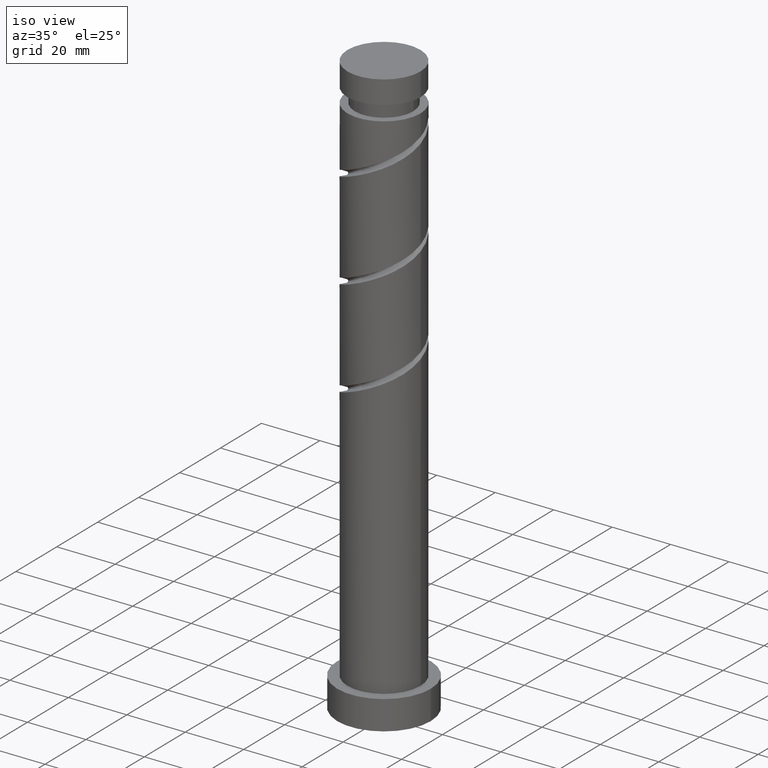
[diagram: clean part render]
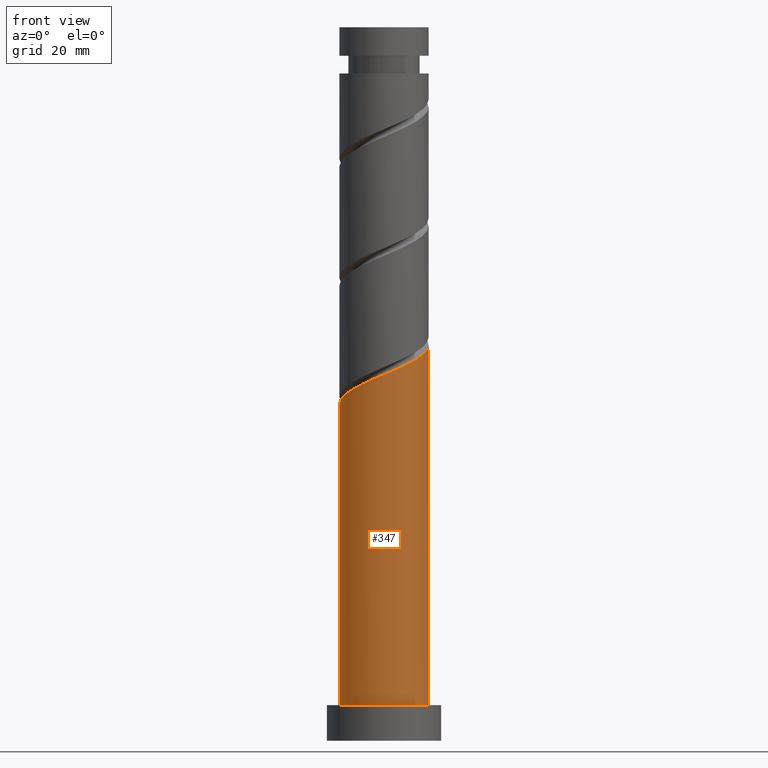
[diagram: tour spotlight — one face highlighted and labeled with its STEP entity id]
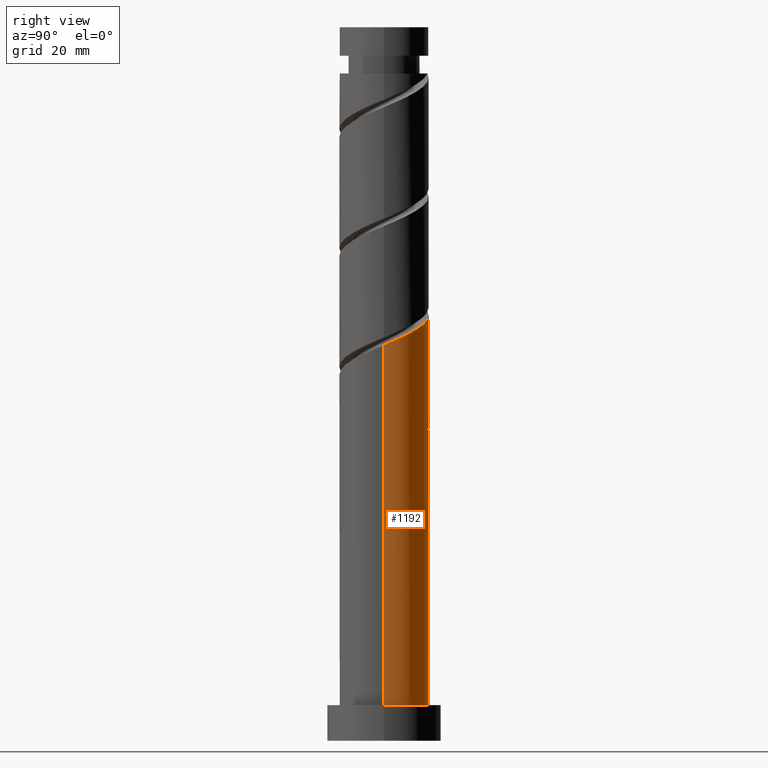
[diagram: tour spotlight — one face highlighted and labeled with its STEP entity id]
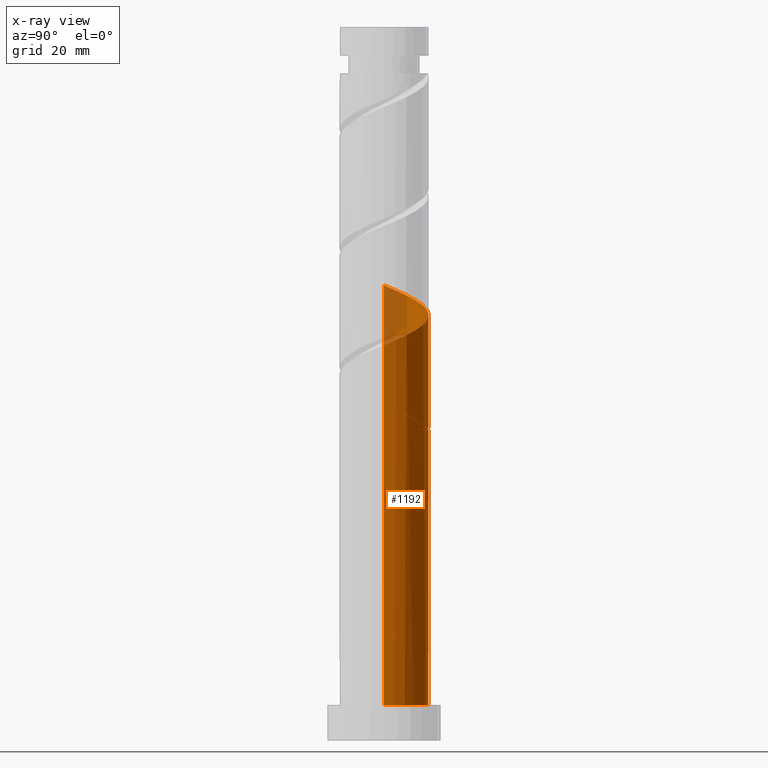
[diagram: x-ray of the same camera — body ghosted, this tour face saturated]
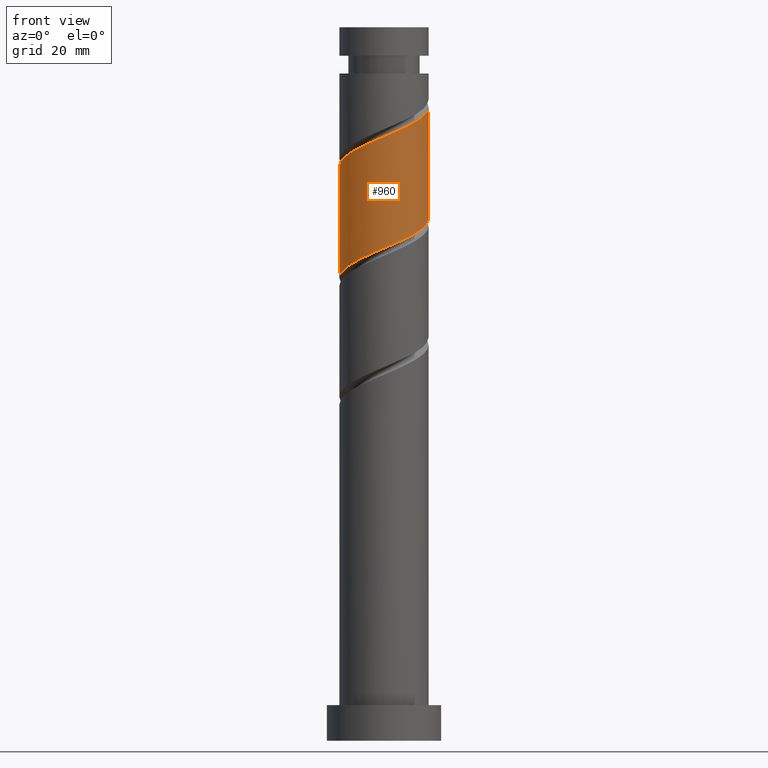
[diagram: tour spotlight — one face highlighted and labeled with its STEP entity id]
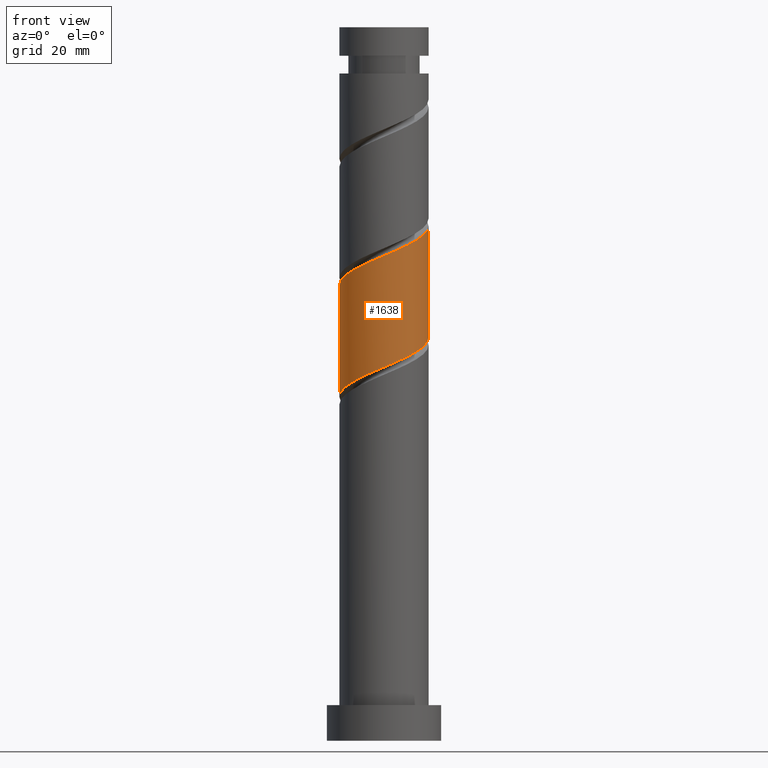
[diagram: tour spotlight — one face highlighted and labeled with its STEP entity id]
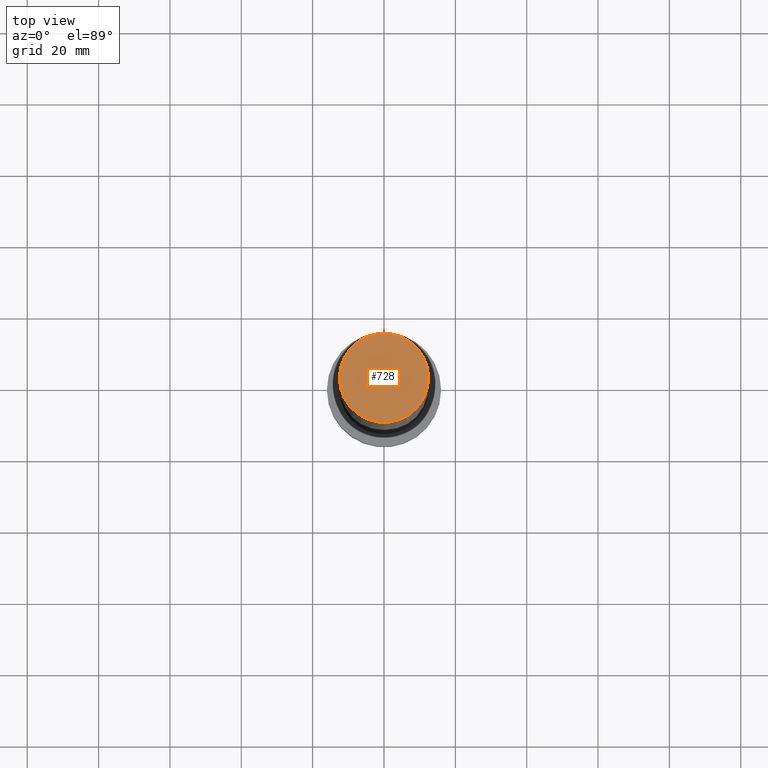
[diagram: tour spotlight — one face highlighted and labeled with its STEP entity id]
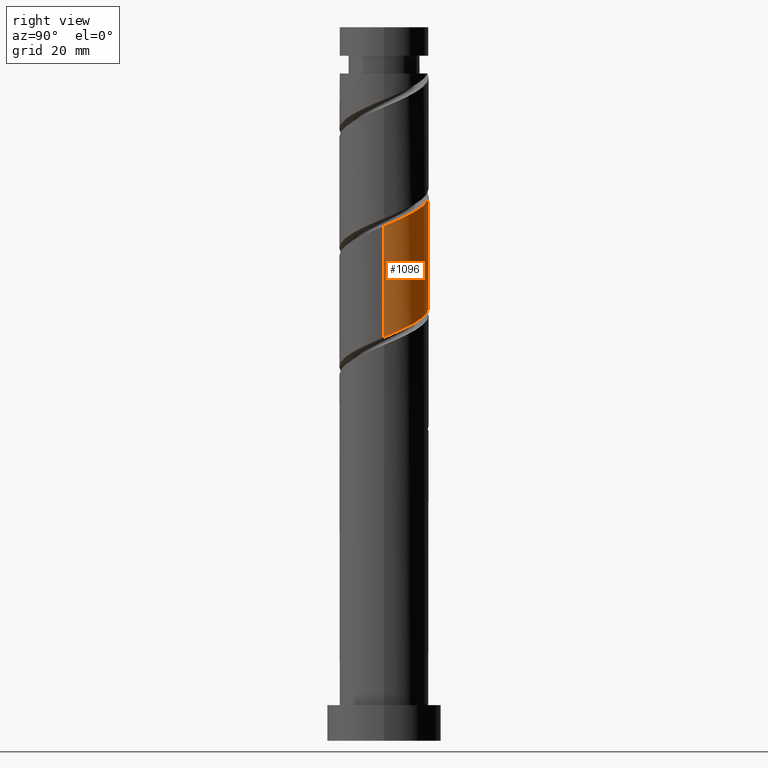
[diagram: tour spotlight — one face highlighted and labeled with its STEP entity id]
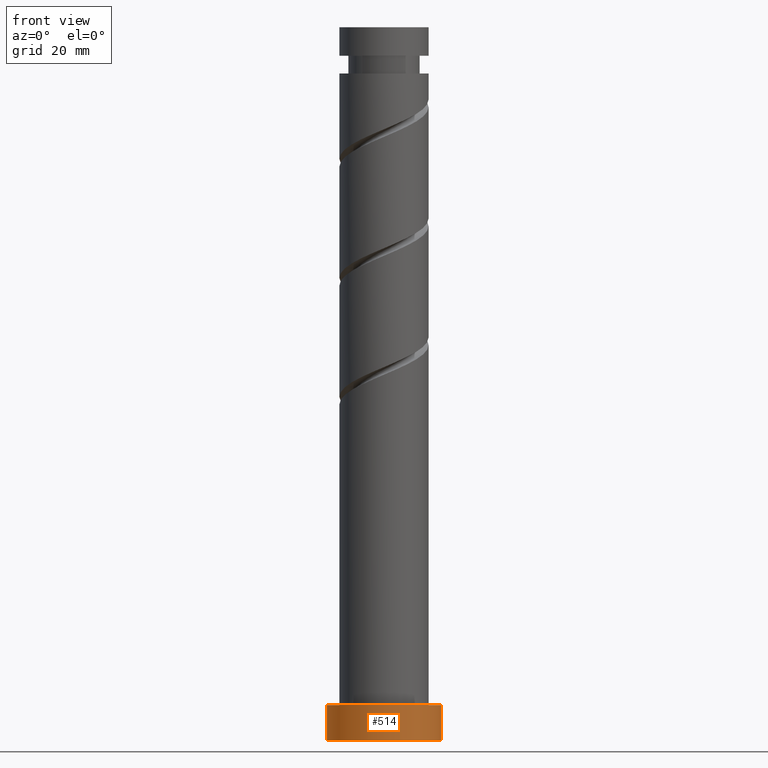
[diagram: tour spotlight — one face highlighted and labeled with its STEP entity id]
A machine part: a face-by-face anatomy tour. The part has 21 B-rep faces; the first image is the clean iso view, then the 7 largest visible faces are spotlighted one at a time (largest first), each with its STEP entity span.

Face 1 — front view, entity #347. In plain terms, the highlighted cylindrical surface (partial cylindrical patch) has radius 12.5 mm, axis along (-0, -0, -1).
Definition (entity closure, byte-faithful):
#4 = CARTESIAN_POINT ( 'NONE',  ( 12.50000000000001421, 4.785211021958463280E-16, 110.9599239297219526 ) ) ;
#55 = EDGE_CURVE ( 'NONE', #205, #155, #1069, .T. ) ;
#64 = CARTESIAN_POINT ( 'NONE',  ( -12.50000000000001776, -8.254489012878347482E-15, 94.29325726305529543 ) ) ;
#82 = DIRECTION ( 'NONE',  ( -0.000000000000000000, -0.000000000000000000, -1.000000000000000000 ) ) ;
#97 = CARTESIAN_POINT ( 'NONE',  ( 12.50000000000000000, 1.530808498934191521E-15, 10.00000000000000000 ) ) ;
#101 = CIRCLE ( 'NONE', #1397, 12.50000000000000000 ) ;
#116 = FACE_OUTER_BOUND ( 'NONE', #1484, .T. ) ;
#133 = CARTESIAN_POINT ( 'NONE',  ( 7.046275228471884589, -10.45505570518541560, 105.7734905849320199 ) ) ;
#141 = CARTESIAN_POINT ( 'NONE',  ( 9.512146756431652861, -8.275098094766816459, 107.1623794738209199 ) ) ;
#151 = CARTESIAN_POINT ( 'NONE',  ( -12.50000000000001776, -1.256297269074020395, 94.82668363224455277 ) ) ;
#155 = VERTEX_POINT ( 'NONE', #1155 ) ;
#196 = ORIENTED_EDGE ( 'NONE', *, *, #981, .T. ) ;
#205 = VERTEX_POINT ( 'NONE', #64 ) ;
#213 = CARTESIAN_POINT ( 'NONE',  ( 12.50000000000000000, 1.530808498934191521E-15, 200.0000000000000000 ) ) ;
#219 = CARTESIAN_POINT ( 'NONE',  ( 0.000000000000000000, 0.000000000000000000, 10.00000000000000000 ) ) ;
#237 = DIRECTION ( 'NONE',  ( 1.000000000000000000, 0.000000000000000000, 0.000000000000000000 ) ) ;
#248 = DIRECTION ( 'NONE',  ( -1.000000000000000000, 0.000000000000000000, 0.000000000000000000 ) ) ;
#259 = CARTESIAN_POINT ( 'NONE',  ( -8.275098094766816459, -9.512146756431652861, 98.82904614048757708 ) ) ;
#281 = CARTESIAN_POINT ( 'NONE',  ( -5.531206224436049368, -11.32978120250636245, 100.2179350293764770 ) ) ;
#289 = CARTESIAN_POINT ( 'NONE',  ( 10.42096397946900055, -6.903152159601433802, 107.8568239182653770 ) ) ;
#347 = ADVANCED_FACE ( 'NONE', ( #116 ), #1032, .T. ) ;
#427 = CARTESIAN_POINT ( 'NONE',  ( 2.487468592766553410, -12.25000000000001776, 103.6901572515987056 ) ) ;
#428 = EDGE_CURVE ( 'NONE', #155, #1002, #1423, .T. ) ;
#436 = CARTESIAN_POINT ( 'NONE',  ( -3.970789007548248151, -11.85254549274266189, 100.9123794738209199 ) ) ;
#523 = VECTOR ( 'NONE', #82, 1000.000000000000000 ) ;
#543 = CARTESIAN_POINT ( 'NONE',  ( -9.365076899976111591, -8.279210992451769613, 98.13460169604313421 ) ) ;
#572 = CARTESIAN_POINT ( 'NONE',  ( 0.8747254973209485085, -12.57748145290793573, 102.9957128071542485 ) ) ;
#574 = VERTEX_POINT ( 'NONE', #1478 ) ;
#583 = VECTOR ( 'NONE', #900, 1000.000000000000000 ) ;
#636 = AXIS2_PLACEMENT_3D ( 'NONE', #1461, #780, #248 ) ;
#646 = DIRECTION ( 'NONE',  ( 0.000000000000000000, 0.000000000000000000, 1.000000000000000000 ) ) ;
#677 = CARTESIAN_POINT ( 'NONE',  ( 11.85254549274266545, -3.970789007548248151, 109.2457128071542343 ) ) ;
#685 = CARTESIAN_POINT ( 'NONE',  ( -11.92251854709210157, -4.100211688212154648, 96.05126836270980561 ) ) ;
#780 = DIRECTION ( 'NONE',  ( -0.000000000000000000, -0.000000000000000000, -1.000000000000000000 ) ) ;
#800 = CARTESIAN_POINT ( 'NONE',  ( -0.7678231466697466034, -12.47639561794345298, 102.3012683627098198 ) ) ;
#808 = CARTESIAN_POINT ( 'NONE',  ( 5.573243458342020062, -11.18878712613875592, 105.0790461404876055 ) ) ;
#846 = EDGE_CURVE ( 'NONE', #574, #1002, #101, .T. ) ;
#900 = DIRECTION ( 'NONE',  ( -0.000000000000000000, -0.000000000000000000, -1.000000000000000000 ) ) ;
#961 = CARTESIAN_POINT ( 'NONE',  ( 4.100211688212153760, -11.92251854709210157, 104.3846016960431484 ) ) ;
#981 = EDGE_CURVE ( 'NONE', #205, #574, #1041, .T. ) ;
#999 = ORIENTED_EDGE ( 'NONE', *, *, #846, .T. ) ;
#1002 = VERTEX_POINT ( 'NONE', #97 ) ;
#1032 = CYLINDRICAL_SURFACE ( 'NONE', #636, 12.50000000000000000 ) ;
#1041 = LINE ( 'NONE', #1570, #583 ) ;
#1069 =( BOUNDED_CURVE ( )  B_SPLINE_CURVE ( 2, ( #1378, #151, #1649, #685, #1631, #1085, #543, #259, #1233, #281, #436, #1501, #800, #572, #427, #961, #808, #133, #1120, #141, #289, #1341, #677, #1746, #1224, #1368, #4 ),
 .UNSPECIFIED., .F., .T. ) 
 B_SPLINE_CURVE_WITH_KNOTS ( ( 3, 2, 2, 2, 2, 2, 2, 2, 2, 2, 2, 2, 2, 3 ),
 ( 0.05453176698144634321, 0.06250000000000000000, 0.07291666666666662966, 0.08333333333333337034, 0.09375000000000000000, 0.1041666666666666297, 0.1145833333333333703, 0.1250000000000000000, 0.1354166666666666297, 0.1458333333333333703, 0.1562500000000000000, 0.1666666666666666297, 0.1770833333333333703, 0.1795317669814463224 ),
 .UNSPECIFIED. ) 
 CURVE ( )  GEOMETRIC_REPRESENTATION_ITEM ( )  RATIONAL_B_SPLINE_CURVE ( ( 0.9062941362546380608, 0.9031415850403423651, 0.9090909090909177204, 0.9013135103398360881, 0.9090909090909177204, 0.9013135103398360881, 0.9090909090909177204, 0.9013135103398360881, 0.9090909090909177204, 0.9013135103398360881, 0.9090909090909177204, 0.9013135103398360881, 0.9090909090909177204, 0.9013135103398360881, 0.9090909090909177204, 0.9013135103398360881, 0.9090909090909177204, 0.9013135103398360881, 0.9090909090909177204, 0.9013135103398360881, 0.9090909090909177204, 0.9013135103398360881, 0.9090909090909177204, 0.9013135103398360881, 0.9090909090909177204, 0.9072628343904114434, 0.9062941362546379498 ) ) 
 REPRESENTATION_ITEM ( '' )  );
#1085 = CARTESIAN_POINT ( 'NONE',  ( -10.45505570518541383, -7.046275228471888141, 97.44015725159869135 ) ) ;
#1120 = CARTESIAN_POINT ( 'NONE',  ( 8.279210992451769613, -9.365076899976111591, 106.4679350293764912 ) ) ;
#1155 = CARTESIAN_POINT ( 'NONE',  ( 12.50000000000001421, 4.785211021958463280E-16, 110.9599239297219526 ) ) ;
#1224 = CARTESIAN_POINT ( 'NONE',  ( 12.47639561794344942, -0.7678231466697532648, 110.6346016960431200 ) ) ;
#1233 = CARTESIAN_POINT ( 'NONE',  ( -6.903152159601429361, -10.42096397946900588, 99.52349058493197731 ) ) ;
#1341 = CARTESIAN_POINT ( 'NONE',  ( 11.32978120250636245, -5.531206224436049368, 108.5512683627098056 ) ) ;
#1368 = CARTESIAN_POINT ( 'NONE',  ( 12.50000000000001243, -0.3842743957209270311, 110.7967602416937893 ) ) ;
#1378 = CARTESIAN_POINT ( 'NONE',  ( -12.50000000000001776, -8.254489012878347482E-15, 94.29325726305526700 ) ) ;
#1397 = AXIS2_PLACEMENT_3D ( 'NONE', #219, #646, #237 ) ;
#1423 = LINE ( 'NONE', #213, #523 ) ;
#1437 = ORIENTED_EDGE ( 'NONE', *, *, #428, .F. ) ;
#1461 = CARTESIAN_POINT ( 'NONE',  ( 0.000000000000000000, 0.000000000000000000, 200.0000000000000000 ) ) ;
#1478 = CARTESIAN_POINT ( 'NONE',  ( -12.50000000000000000, 0.000000000000000000, 10.00000000000000000 ) ) ;
#1484 = EDGE_LOOP ( 'NONE', ( #1437, #1639, #196, #999 ) ) ;
#1501 = CARTESIAN_POINT ( 'NONE',  ( -2.410371790660441160, -12.37530978297896667, 101.6068239182653485 ) ) ;
#1570 = CARTESIAN_POINT ( 'NONE',  ( -12.50000000000000000, 0.000000000000000000, 200.0000000000000000 ) ) ;
#1631 = CARTESIAN_POINT ( 'NONE',  ( -11.18878712613875415, -5.573243458342023615, 96.74571280715426269 ) ) ;
#1639 = ORIENTED_EDGE ( 'NONE', *, *, #55, .F. ) ;
#1649 = CARTESIAN_POINT ( 'NONE',  ( -12.25000000000001776, -2.487468592766553854, 95.35682391826534854 ) ) ;
#1746 = CARTESIAN_POINT ( 'NONE',  ( 12.37530978297896134, -2.410371790660446933, 109.9401572515986629 ) ) ;

Face 2 — right view, entity #1192. An x-ray twin of the same camera follows (body ghosted, this face saturated) — the face is partly hidden behind the body. In plain terms, the highlighted cylindrical surface (partial cylindrical patch) has radius 12.5 mm, axis along (-0, -0, -1).
Definition (entity closure, byte-faithful):
#36 = VERTEX_POINT ( 'NONE', #125 ) ;
#49 = AXIS2_PLACEMENT_3D ( 'NONE', #1662, #1403, #1159 ) ;
#64 = CARTESIAN_POINT ( 'NONE',  ( -12.50000000000001776, -8.254489012878347482E-15, 94.29325726305529543 ) ) ;
#71 = VECTOR ( 'NONE', #1052, 1000.000000000000000 ) ;
#75 = CARTESIAN_POINT ( 'NONE',  ( -11.32978120250636245, 5.531206224436046703, 91.88460169604312000 ) ) ;
#82 = DIRECTION ( 'NONE',  ( -0.000000000000000000, -0.000000000000000000, -1.000000000000000000 ) ) ;
#97 = CARTESIAN_POINT ( 'NONE',  ( 12.50000000000000000, 1.530808498934191521E-15, 10.00000000000000000 ) ) ;
#99 = CARTESIAN_POINT ( 'NONE',  ( -12.47639561794345298, 0.7678231466697459373, 93.96793502937646281 ) ) ;
#125 = CARTESIAN_POINT ( 'NONE',  ( -12.50000000000000178, 1.429581792810098148E-14, 96.42039057347541586 ) ) ;
#144 = CARTESIAN_POINT ( 'NONE',  ( -11.92251854709208381, 4.100211688212155536, 94.66237947382091988 ) ) ;
#155 = VERTEX_POINT ( 'NONE', #1155 ) ;
#179 = CIRCLE ( 'NONE', #1623, 12.50000000000000000 ) ;
#200 = CARTESIAN_POINT ( 'NONE',  ( -8.279210992451771389, 9.365076899976111591, 89.80126836270977719 ) ) ;
#205 = VERTEX_POINT ( 'NONE', #64 ) ;
#213 = CARTESIAN_POINT ( 'NONE',  ( 12.50000000000000000, 1.530808498934191521E-15, 200.0000000000000000 ) ) ;
#221 = EDGE_CURVE ( 'NONE', #280, #205, #856, .T. ) ;
#222 = CARTESIAN_POINT ( 'NONE',  ( -12.50000000000000000, 0.000000000000000000, 200.0000000000000000 ) ) ;
#246 = CARTESIAN_POINT ( 'NONE',  ( -7.046275228471890806, 10.45505570518541028, 122.4401572515986771 ) ) ;
#254 = CARTESIAN_POINT ( 'NONE',  ( -12.47639561794345298, 0.7678231466697459373, 127.3012683627098056 ) ) ;
#279 = EDGE_CURVE ( 'NONE', #863, #36, #1433, .T. ) ;
#280 = VERTEX_POINT ( 'NONE', #1590 ) ;
#317 = CARTESIAN_POINT ( 'NONE',  ( 0.000000000000000000, 0.000000000000000000, 10.00000000000000000 ) ) ;
#321 = CARTESIAN_POINT ( 'NONE',  ( -0.7678231466697402752, 12.47639561794343344, 88.41237947382087725 ) ) ;
#324 =( BOUNDED_CURVE ( )  B_SPLINE_CURVE ( 2, ( #1210, #1724, #661, #1070, #503, #512, #1185, #1193, #385, #1314, #936, #1588, #1597, #927, #375, #359, #367, #246, #918, #1306, #1467, #778, #795, #1323, #254, #1459, #787 ),
 .UNSPECIFIED., .F., .T. ) 
 B_SPLINE_CURVE_WITH_KNOTS ( ( 3, 2, 2, 2, 2, 2, 2, 2, 2, 2, 2, 2, 2, 3 ),
 ( 0.1795317669814463224, 0.1875000000000000000, 0.1979166666666666297, 0.2083333333333333703, 0.2187500000000000000, 0.2291666666666666297, 0.2395833333333333703, 0.2500000000000000000, 0.2604166666666666297, 0.2708333333333333703, 0.2812500000000000000, 0.2916666666666666297, 0.3020833333333333703, 0.3045317669814464057 ),
 .UNSPECIFIED. ) 
 CURVE ( )  GEOMETRIC_REPRESENTATION_ITEM ( )  RATIONAL_B_SPLINE_CURVE ( ( 0.9062941362546379498, 0.9031415850403422541, 0.9090909090909177204, 0.9013135103398360881, 0.9090909090909177204, 0.9013135103398360881, 0.9090909090909177204, 0.9013135103398360881, 0.9090909090909177204, 0.9013135103398360881, 0.9090909090909177204, 0.9013135103398360881, 0.9090909090909177204, 0.9013135103398360881, 0.9090909090909177204, 0.9013135103398360881, 0.9090909090909177204, 0.9013135103398360881, 0.9090909090909177204, 0.9013135103398360881, 0.9090909090909177204, 0.9013135103398360881, 0.9090909090909177204, 0.9013135103398360881, 0.9090909090909177204, 0.9072628343904114434, 0.9062941362546379498 ) ) 
 REPRESENTATION_ITEM ( '' )  );
#336 = CARTESIAN_POINT ( 'NONE',  ( -5.573243458342023615, 11.18878712613875415, 88.41237947382091988 ) ) ;
#342 = CARTESIAN_POINT ( 'NONE',  ( -11.85254549274266545, 3.970789007548244598, 92.57904614048759129 ) ) ;
#359 = CARTESIAN_POINT ( 'NONE',  ( -4.100211688212155536, 11.92251854709209447, 121.0512683627097772 ) ) ;
#367 = CARTESIAN_POINT ( 'NONE',  ( -5.573243458342023615, 11.18878712613875415, 121.7457128071542343 ) ) ;
#375 = CARTESIAN_POINT ( 'NONE',  ( -2.487468592766551634, 12.25000000000001776, 120.3568239182653627 ) ) ;
#385 = CARTESIAN_POINT ( 'NONE',  ( 6.903152159601431137, 10.42096397946900410, 116.1901572515986913 ) ) ;
#393 = CARTESIAN_POINT ( 'NONE',  ( 0.8747254973209545037, 12.57748145290792152, 87.71793502937647702 ) ) ;
#399 = ORIENTED_EDGE ( 'NONE', *, *, #428, .T. ) ;
#412 = CARTESIAN_POINT ( 'NONE',  ( -6.903152159601418703, 10.42096397946899877, 91.19015725159867714 ) ) ;
#428 = EDGE_CURVE ( 'NONE', #155, #1002, #1423, .T. ) ;
#472 = ORIENTED_EDGE ( 'NONE', *, *, #902, .F. ) ;
#486 = CARTESIAN_POINT ( 'NONE',  ( -12.50000000000001243, 0.3842743957209160954, 94.13009357502716057 ) ) ;
#503 = CARTESIAN_POINT ( 'NONE',  ( 11.18878712613875592, 5.573243458342018286, 113.4123794738209199 ) ) ;
#512 = CARTESIAN_POINT ( 'NONE',  ( 10.45505570518541560, 7.046275228471881924, 114.1068239182653627 ) ) ;
#523 = VECTOR ( 'NONE', #82, 1000.000000000000000 ) ;
#574 = VERTEX_POINT ( 'NONE', #1478 ) ;
#580 = CARTESIAN_POINT ( 'NONE',  ( 2.487468592766556519, 12.25000000000000000, 87.02349058493203415 ) ) ;
#583 = VECTOR ( 'NONE', #900, 1000.000000000000000 ) ;
#616 = FACE_OUTER_BOUND ( 'NONE', #749, .T. ) ;
#661 = CARTESIAN_POINT ( 'NONE',  ( 12.25000000000001776, 2.487468592766552966, 112.0234905849319915 ) ) ;
#666 = AXIS2_PLACEMENT_3D ( 'NONE', #1529, #1694, #1009 ) ;
#743 = CARTESIAN_POINT ( 'NONE',  ( -9.512146756431654637, 8.275098094766814683, 90.49571280715424848 ) ) ;
#749 = EDGE_LOOP ( 'NONE', ( #472, #399, #1577, #997, #1647, #784, #1489, #1216 ) ) ;
#778 = CARTESIAN_POINT ( 'NONE',  ( -11.32978120250636245, 5.531206224436046703, 125.2179350293764770 ) ) ;
#784 = ORIENTED_EDGE ( 'NONE', *, *, #1226, .T. ) ;
#787 = CARTESIAN_POINT ( 'NONE',  ( -12.50000000000001776, -8.254489012878345905E-15, 127.6265905963886382 ) ) ;
#795 = CARTESIAN_POINT ( 'NONE',  ( -11.85254549274266545, 3.970789007548244598, 125.9123794738209199 ) ) ;
#820 = CARTESIAN_POINT ( 'NONE',  ( -12.24999999999999822, 2.487468592766553854, 95.35682391826533433 ) ) ;
#850 = CARTESIAN_POINT ( 'NONE',  ( -12.50000000000000533, 1.256297269074025502, 95.88696420428614431 ) ) ;
#852 = DIRECTION ( 'NONE',  ( 0.000000000000000000, 0.000000000000000000, 1.000000000000000000 ) ) ;
#856 =( BOUNDED_CURVE ( )  B_SPLINE_CURVE ( 2, ( #1413, #1682, #336, #878, #200, #743, #1286, #75, #342, #1706, #99, #486, #1178 ),
 .UNSPECIFIED., .F., .T. ) 
 B_SPLINE_CURVE_WITH_KNOTS ( ( 3, 2, 2, 2, 2, 2, 3 ),
 ( 0.000000000000000000, 0.01041666666666662966, 0.02083333333333337034, 0.03125000000000000000, 0.04166666666666662966, 0.05208333333333337034, 0.05453176698144634321 ),
 .UNSPECIFIED. ) 
 CURVE ( )  GEOMETRIC_REPRESENTATION_ITEM ( )  RATIONAL_B_SPLINE_CURVE ( ( 0.9090909090909177204, 0.9013135103398360881, 0.9090909090909177204, 0.9013135103398360881, 0.9090909090909177204, 0.9013135103398360881, 0.9090909090909177204, 0.9013135103398360881, 0.9090909090909177204, 0.9013135103398360881, 0.9090909090909177204, 0.9072628343904114434, 0.9062941362546380608 ) ) 
 REPRESENTATION_ITEM ( '' )  );
#863 = VERTEX_POINT ( 'NONE', #1050 ) ;
#874 = CYLINDRICAL_SURFACE ( 'NONE', #49, 12.50000000000000000 ) ;
#878 = CARTESIAN_POINT ( 'NONE',  ( -7.046275228471890806, 10.45505570518541028, 89.10682391826532012 ) ) ;
#900 = DIRECTION ( 'NONE',  ( -0.000000000000000000, -0.000000000000000000, -1.000000000000000000 ) ) ;
#902 = EDGE_CURVE ( 'NONE', #155, #863, #324, .T. ) ;
#918 = CARTESIAN_POINT ( 'NONE',  ( -8.279210992451771389, 9.365076899976111591, 123.1346016960431342 ) ) ;
#927 = CARTESIAN_POINT ( 'NONE',  ( -0.8747254973209406259, 12.57748145290793573, 119.6623794738209057 ) ) ;
#936 = CARTESIAN_POINT ( 'NONE',  ( 3.970789007548248151, 11.85254549274266189, 117.5790461404876055 ) ) ;
#981 = EDGE_CURVE ( 'NONE', #205, #574, #1041, .T. ) ;
#997 = ORIENTED_EDGE ( 'NONE', *, *, #981, .F. ) ;
#1002 = VERTEX_POINT ( 'NONE', #97 ) ;
#1009 = DIRECTION ( 'NONE',  ( -1.000000000000000000, 0.000000000000000000, 0.000000000000000000 ) ) ;
#1041 = LINE ( 'NONE', #1570, #583 ) ;
#1050 = CARTESIAN_POINT ( 'NONE',  ( -12.50000000000001776, -8.254489012878347482E-15, 127.6265905963886382 ) ) ;
#1052 = DIRECTION ( 'NONE',  ( -0.000000000000000000, -0.000000000000000000, -1.000000000000000000 ) ) ;
#1070 = CARTESIAN_POINT ( 'NONE',  ( 11.92251854709210157, 4.100211688212151984, 112.7179350293764770 ) ) ;
#1077 = CARTESIAN_POINT ( 'NONE',  ( -12.50000000000000178, 1.429581792810098148E-14, 96.42039057347541586 ) ) ;
#1078 = VERTEX_POINT ( 'NONE', #1652 ) ;
#1155 = CARTESIAN_POINT ( 'NONE',  ( 12.50000000000001421, 4.785211021958463280E-16, 110.9599239297219526 ) ) ;
#1159 = DIRECTION ( 'NONE',  ( -1.000000000000000000, 0.000000000000000000, 0.000000000000000000 ) ) ;
#1178 = CARTESIAN_POINT ( 'NONE',  ( -12.50000000000001776, -8.254489012878347482E-15, 94.29325726305526700 ) ) ;
#1185 = CARTESIAN_POINT ( 'NONE',  ( 9.365076899976116920, 8.279210992451766060, 114.8012683627098198 ) ) ;
#1192 = ADVANCED_FACE ( 'NONE', ( #616 ), #874, .T. ) ;
#1193 = CARTESIAN_POINT ( 'NONE',  ( 8.275098094766820012, 9.512146756431647532, 115.4957128071542343 ) ) ;
#1209 = CIRCLE ( 'NONE', #666, 12.50000000000000000 ) ;
#1210 = CARTESIAN_POINT ( 'NONE',  ( 12.50000000000001421, 4.785211021958463280E-16, 110.9599239297219526 ) ) ;
#1216 = ORIENTED_EDGE ( 'NONE', *, *, #279, .F. ) ;
#1226 = EDGE_CURVE ( 'NONE', #280, #1078, #1209, .T. ) ;
#1235 = CARTESIAN_POINT ( 'NONE',  ( -2.410371790660436275, 12.37530978297895246, 89.10682391826540538 ) ) ;
#1286 = CARTESIAN_POINT ( 'NONE',  ( -10.42096397946900588, 6.903152159601429361, 91.19015725159869135 ) ) ;
#1306 = CARTESIAN_POINT ( 'NONE',  ( -9.512146756431654637, 8.275098094766814683, 123.8290461404875771 ) ) ;
#1314 = CARTESIAN_POINT ( 'NONE',  ( 5.531206224436051144, 11.32978120250636245, 116.8846016960431342 ) ) ;
#1323 = CARTESIAN_POINT ( 'NONE',  ( -12.37530978297896667, 2.410371790660440272, 126.6068239182653485 ) ) ;
#1329 = EDGE_CURVE ( 'NONE', #1002, #574, #179, .T. ) ;
#1394 = DIRECTION ( 'NONE',  ( 1.000000000000000000, 0.000000000000000000, 0.000000000000000000 ) ) ;
#1400 = CARTESIAN_POINT ( 'NONE',  ( -8.275098094766800472, 9.512146756431647532, 91.88460169604313421 ) ) ;
#1403 = DIRECTION ( 'NONE',  ( -0.000000000000000000, -0.000000000000000000, -1.000000000000000000 ) ) ;
#1413 = CARTESIAN_POINT ( 'NONE',  ( -2.487468592766551634, 12.25000000000001776, 87.02349058493203415 ) ) ;
#1418 =( BOUNDED_CURVE ( )  B_SPLINE_CURVE ( 2, ( #1077, #850, #820, #144, #1604, #1534, #1740, #1400, #412, #1667, #1495, #1235, #321, #393, #580 ),
 .UNSPECIFIED., .F., .T. ) 
 B_SPLINE_CURVE_WITH_KNOTS ( ( 3, 2, 2, 2, 2, 2, 2, 3 ),
 ( 0.9295317669814463502, 0.9375000000000000000, 0.9479166666666666297, 0.9583333333333333703, 0.9687500000000000000, 0.9791666666666666297, 0.9895833333333333703, 1.000000000000000000 ),
 .UNSPECIFIED. ) 
 CURVE ( )  GEOMETRIC_REPRESENTATION_ITEM ( )  RATIONAL_B_SPLINE_CURVE ( ( 0.9062941362546331758, 0.9031415850403374801, 0.9090909090909128354, 0.9013135103398313142, 0.9090909090909128354, 0.9013135103398313142, 0.9090909090909128354, 0.9013135103398313142, 0.9090909090909128354, 0.9013135103398313142, 0.9090909090909128354, 0.9013135103398313142, 0.9090909090909128354, 0.9013135103398313142, 0.9090909090909128354 ) ) 
 REPRESENTATION_ITEM ( '' )  );
#1423 = LINE ( 'NONE', #213, #523 ) ;
#1433 = LINE ( 'NONE', #222, #71 ) ;
#1459 = CARTESIAN_POINT ( 'NONE',  ( -12.50000000000001421, 0.3842743957209062144, 127.4634269083604607 ) ) ;
#1467 = CARTESIAN_POINT ( 'NONE',  ( -10.42096397946900588, 6.903152159601429361, 124.5234905849320342 ) ) ;
#1478 = CARTESIAN_POINT ( 'NONE',  ( -12.50000000000000000, 0.000000000000000000, 10.00000000000000000 ) ) ;
#1489 = ORIENTED_EDGE ( 'NONE', *, *, #1551, .F. ) ;
#1495 = CARTESIAN_POINT ( 'NONE',  ( -3.970789007548235272, 11.85254549274265123, 89.80126836270980561 ) ) ;
#1529 = CARTESIAN_POINT ( 'NONE',  ( 0.000000000000000000, 0.000000000000000000, 87.02349058493203415 ) ) ;
#1534 = CARTESIAN_POINT ( 'NONE',  ( -10.45505570518539784, 7.046275228471886365, 93.27349058493206257 ) ) ;
#1551 = EDGE_CURVE ( 'NONE', #36, #1078, #1418, .T. ) ;
#1570 = CARTESIAN_POINT ( 'NONE',  ( -12.50000000000000000, 0.000000000000000000, 200.0000000000000000 ) ) ;
#1577 = ORIENTED_EDGE ( 'NONE', *, *, #1329, .T. ) ;
#1588 = CARTESIAN_POINT ( 'NONE',  ( 2.410371790660448266, 12.37530978297896134, 118.2734905849320199 ) ) ;
#1590 = CARTESIAN_POINT ( 'NONE',  ( -2.487468592766551634, 12.25000000000001599, 87.02349058493203415 ) ) ;
#1597 = CARTESIAN_POINT ( 'NONE',  ( 0.7678231466697537089, 12.47639561794345298, 118.9679350293764912 ) ) ;
#1604 = CARTESIAN_POINT ( 'NONE',  ( -11.18878712613873283, 5.573243458342019174, 93.96793502937647702 ) ) ;
#1623 = AXIS2_PLACEMENT_3D ( 'NONE', #317, #852, #1394 ) ;
#1647 = ORIENTED_EDGE ( 'NONE', *, *, #221, .F. ) ;
#1652 = CARTESIAN_POINT ( 'NONE',  ( 2.487468592766556519, 12.25000000000000000, 87.02349058493203415 ) ) ;
#1662 = CARTESIAN_POINT ( 'NONE',  ( 0.000000000000000000, 0.000000000000000000, 200.0000000000000000 ) ) ;
#1667 = CARTESIAN_POINT ( 'NONE',  ( -5.531206224436037822, 11.32978120250634824, 90.49571280715424848 ) ) ;
#1682 = CARTESIAN_POINT ( 'NONE',  ( -4.100211688212155536, 11.92251854709209447, 87.71793502937647702 ) ) ;
#1694 = DIRECTION ( 'NONE',  ( 0.000000000000000000, -0.000000000000000000, -1.000000000000000000 ) ) ;
#1706 = CARTESIAN_POINT ( 'NONE',  ( -12.37530978297896667, 2.410371790660440272, 93.27349058493199152 ) ) ;
#1724 = CARTESIAN_POINT ( 'NONE',  ( 12.50000000000001776, 1.256297269074009293, 111.4933502989111815 ) ) ;
#1740 = CARTESIAN_POINT ( 'NONE',  ( -9.365076899976099156, 8.279210992451766060, 92.57904614048759129 ) ) ;

Face 3 — front view, entity #960. In plain terms, the highlighted cylindrical surface (partial cylindrical patch) has radius 12.5 mm, axis along (-0, -0, -1).
Definition (entity closure, byte-faithful):
#35 =( BOUNDED_CURVE ( )  B_SPLINE_CURVE ( 2, ( #178, #197, #864, #1020, #332, #339, #311, #1142, #1261, #1670, #882, #607, #61, #601, #1150, #456, #1545, #998, #1536, #845, #738, #170, #464, #715, #751, #473, #1277 ),
 .UNSPECIFIED., .F., .T. ) 
 B_SPLINE_CURVE_WITH_KNOTS ( ( 3, 2, 2, 2, 2, 2, 2, 2, 2, 2, 2, 2, 2, 3 ),
 ( 0.5545317669814462391, 0.5625000000000000000, 0.5729166666666667407, 0.5833333333333332593, 0.5937500000000000000, 0.6041666666666667407, 0.6145833333333332593, 0.6250000000000000000, 0.6354166666666667407, 0.6458333333333332593, 0.6562500000000000000, 0.6666666666666667407, 0.6770833333333332593, 0.6795317669814462391 ),
 .UNSPECIFIED. ) 
 CURVE ( )  GEOMETRIC_REPRESENTATION_ITEM ( )  RATIONAL_B_SPLINE_CURVE ( ( 0.9062941362546380608, 0.9031415850403423651, 0.9090909090909177204, 0.9013135103398360881, 0.9090909090909177204, 0.9013135103398360881, 0.9090909090909177204, 0.9013135103398360881, 0.9090909090909177204, 0.9013135103398360881, 0.9090909090909177204, 0.9013135103398360881, 0.9090909090909177204, 0.9013135103398360881, 0.9090909090909177204, 0.9013135103398360881, 0.9090909090909177204, 0.9013135103398360881, 0.9090909090909177204, 0.9013135103398360881, 0.9090909090909177204, 0.9013135103398360881, 0.9090909090909177204, 0.9013135103398360881, 0.9090909090909177204, 0.9072628343904114434, 0.9062941362546380608 ) ) 
 REPRESENTATION_ITEM ( '' )  );
#53 = CARTESIAN_POINT ( 'NONE',  ( -12.50000000000000178, 1.429581792810098148E-14, 129.7537239068087445 ) ) ;
#61 = CARTESIAN_POINT ( 'NONE',  ( -0.7678231466697466034, -12.47639561794345298, 168.9679350293764912 ) ) ;
#87 = CARTESIAN_POINT ( 'NONE',  ( -12.47639561794343344, -0.7678231466697390539, 130.0790461404876055 ) ) ;
#88 = FACE_OUTER_BOUND ( 'NONE', #145, .T. ) ;
#105 = CARTESIAN_POINT ( 'NONE',  ( 9.365076899976095604, -8.279210992451769613, 142.5790461404876055 ) ) ;
#120 = CARTESIAN_POINT ( 'NONE',  ( -8.279210992451767837, -9.365076899976097380, 134.2457128071542343 ) ) ;
#121 = CARTESIAN_POINT ( 'NONE',  ( 0.000000000000000000, 0.000000000000000000, 200.0000000000000000 ) ) ;
#145 = EDGE_LOOP ( 'NONE', ( #1171, #1299, #711, #1027 ) ) ;
#170 = CARTESIAN_POINT ( 'NONE',  ( 11.32978120250636245, -5.531206224436049368, 175.2179350293764060 ) ) ;
#178 = CARTESIAN_POINT ( 'NONE',  ( -12.50000000000001599, -4.127244506439172952E-15, 160.9599239297219810 ) ) ;
#197 = CARTESIAN_POINT ( 'NONE',  ( -12.50000000000001776, -1.256297269074017287, 161.4933502989112242 ) ) ;
#218 = CARTESIAN_POINT ( 'NONE',  ( 11.92251854709207848, -4.100211688212163530, 144.6623794738209483 ) ) ;
#245 = CARTESIAN_POINT ( 'NONE',  ( -4.100211688212158201, -11.92251854709208381, 136.3290461404876055 ) ) ;
#311 = CARTESIAN_POINT ( 'NONE',  ( -9.365076899976111591, -8.279210992451769613, 164.8012683627098625 ) ) ;
#323 = CARTESIAN_POINT ( 'NONE',  ( 12.50000000000000000, 1.530808498934191521E-15, 200.0000000000000000 ) ) ;
#332 = CARTESIAN_POINT ( 'NONE',  ( -11.18878712613875415, -5.573243458342023615, 163.4123794738209199 ) ) ;
#339 = CARTESIAN_POINT ( 'NONE',  ( -10.45505570518541383, -7.046275228471888141, 164.1068239182653485 ) ) ;
#349 = VERTEX_POINT ( 'NONE', #1195 ) ;
#366 = CARTESIAN_POINT ( 'NONE',  ( 11.18878712613873105, -5.573243458342028944, 143.9679350293764628 ) ) ;
#456 = CARTESIAN_POINT ( 'NONE',  ( 4.100211688212153760, -11.92251854709210157, 171.0512683627098056 ) ) ;
#464 = CARTESIAN_POINT ( 'NONE',  ( 11.85254549274266545, -3.970789007548248151, 175.9123794738209199 ) ) ;
#473 = CARTESIAN_POINT ( 'NONE',  ( 12.50000000000001243, -0.3842743957209268646, 177.4634269083604750 ) ) ;
#483 = CARTESIAN_POINT ( 'NONE',  ( -10.42096397946899344, -6.903152159601418703, 132.8568239182653770 ) ) ;
#491 = VERTEX_POINT ( 'NONE', #1491 ) ;
#521 = DIRECTION ( 'NONE',  ( -0.000000000000000000, -0.000000000000000000, -1.000000000000000000 ) ) ;
#555 = VECTOR ( 'NONE', #1387, 1000.000000000000000 ) ;
#601 = CARTESIAN_POINT ( 'NONE',  ( 0.8747254973209485085, -12.57748145290793573, 169.6623794738208630 ) ) ;
#607 = CARTESIAN_POINT ( 'NONE',  ( -2.410371790660441160, -12.37530978297896667, 168.2734905849320057 ) ) ;
#644 = CARTESIAN_POINT ( 'NONE',  ( 2.410371790660427838, -12.37530978297895778, 139.1068239182653770 ) ) ;
#689 = VERTEX_POINT ( 'NONE', #1091 ) ;
#711 = ORIENTED_EDGE ( 'NONE', *, *, #1172, .T. ) ;
#715 = CARTESIAN_POINT ( 'NONE',  ( 12.37530978297896134, -2.410371790660446933, 176.6068239182653485 ) ) ;
#738 = CARTESIAN_POINT ( 'NONE',  ( 10.42096397946900055, -6.903152159601433802, 174.5234905849320342 ) ) ;
#751 = CARTESIAN_POINT ( 'NONE',  ( 12.47639561794344942, -0.7678231466697532648, 177.3012683627098056 ) ) ;
#759 = CARTESIAN_POINT ( 'NONE',  ( -11.85254549274265123, -3.970789007548233496, 131.4679350293764912 ) ) ;
#776 = CARTESIAN_POINT ( 'NONE',  ( 5.531206224436036045, -11.32978120250635179, 140.4957128071542627 ) ) ;
#845 = CARTESIAN_POINT ( 'NONE',  ( 9.512146756431652861, -8.275098094766816459, 173.8290461404876055 ) ) ;
#864 = CARTESIAN_POINT ( 'NONE',  ( -12.25000000000001776, -2.487468592766553854, 162.0234905849320626 ) ) ;
#882 = CARTESIAN_POINT ( 'NONE',  ( -3.970789007548248151, -11.85254549274266189, 167.5790461404875771 ) ) ;
#890 = CARTESIAN_POINT ( 'NONE',  ( -11.32978120250635179, -5.531206224436036045, 132.1623794738209199 ) ) ;
#898 = VERTEX_POINT ( 'NONE', #1742 ) ;
#909 = CYLINDRICAL_SURFACE ( 'NONE', #1239, 12.50000000000000000 ) ;
#916 = CARTESIAN_POINT ( 'NONE',  ( 3.970789007548233496, -11.85254549274265123, 139.8012683627097772 ) ) ;
#925 = CARTESIAN_POINT ( 'NONE',  ( -2.487468592766553854, -12.24999999999999822, 137.0234905849319773 ) ) ;
#954 = LINE ( 'NONE', #1496, #1320 ) ;
#960 = ADVANCED_FACE ( 'NONE', ( #88 ), #909, .T. ) ;
#983 = LINE ( 'NONE', #323, #555 ) ;
#998 = CARTESIAN_POINT ( 'NONE',  ( 7.046275228471884589, -10.45505570518541560, 172.4401572515986629 ) ) ;
#1020 = CARTESIAN_POINT ( 'NONE',  ( -11.92251854709210157, -4.100211688212154648, 162.7179350293764912 ) ) ;
#1027 = ORIENTED_EDGE ( 'NONE', *, *, #1488, .F. ) ;
#1028 = CARTESIAN_POINT ( 'NONE',  ( 6.903152159601413373, -10.42096397946900233, 141.1901572515986913 ) ) ;
#1091 = CARTESIAN_POINT ( 'NONE',  ( 12.50000000000001599, -3.708538542017807169E-15, 177.6265905963886098 ) ) ;
#1142 = CARTESIAN_POINT ( 'NONE',  ( -8.275098094766816459, -9.512146756431652861, 165.4957128071542627 ) ) ;
#1150 = CARTESIAN_POINT ( 'NONE',  ( 2.487468592766553410, -12.25000000000001776, 170.3568239182653770 ) ) ;
#1171 = ORIENTED_EDGE ( 'NONE', *, *, #1276, .F. ) ;
#1172 = EDGE_CURVE ( 'NONE', #898, #349, #954, .T. ) ;
#1195 = CARTESIAN_POINT ( 'NONE',  ( -12.50000000000000178, 1.429581792810098148E-14, 129.7537239068087445 ) ) ;
#1201 = CARTESIAN_POINT ( 'NONE',  ( 12.24999999999999822, -2.487468592766554742, 145.3568239182654054 ) ) ;
#1208 = CARTESIAN_POINT ( 'NONE',  ( -9.512146756431651085, -8.275098094766798695, 133.5512683627098056 ) ) ;
#1239 = AXIS2_PLACEMENT_3D ( 'NONE', #121, #521, #1449 ) ;
#1261 = CARTESIAN_POINT ( 'NONE',  ( -6.903152159601429361, -10.42096397946900588, 166.1901572515986629 ) ) ;
#1269 = DIRECTION ( 'NONE',  ( -0.000000000000000000, -0.000000000000000000, -1.000000000000000000 ) ) ;
#1276 = EDGE_CURVE ( 'NONE', #689, #491, #983, .T. ) ;
#1277 = CARTESIAN_POINT ( 'NONE',  ( 12.50000000000001599, -3.708538542017807169E-15, 177.6265905963886098 ) ) ;
#1292 =( BOUNDED_CURVE ( )  B_SPLINE_CURVE ( 2, ( #1596, #1578, #1201, #218, #366, #1731, #105, #1448, #1028, #776, #916, #644, #1587, #1458, #925, #245, #1466, #1337, #120, #1208, #483, #890, #759, #1305, #87, #1749, #53 ),
 .UNSPECIFIED., .F., .T. ) 
 B_SPLINE_CURVE_WITH_KNOTS ( ( 3, 2, 2, 2, 2, 2, 2, 2, 2, 2, 2, 2, 2, 3 ),
 ( 0.5545317669814462391, 0.5625000000000000000, 0.5729166666666666297, 0.5833333333333333703, 0.5937500000000000000, 0.6041666666666666297, 0.6145833333333333703, 0.6250000000000000000, 0.6354166666666666297, 0.6458333333333333703, 0.6562500000000000000, 0.6666666666666666297, 0.6770833333333333703, 0.6795317669814463502 ),
 .UNSPECIFIED. ) 
 CURVE ( )  GEOMETRIC_REPRESENTATION_ITEM ( )  RATIONAL_B_SPLINE_CURVE ( ( 0.9062941362546331758, 0.9031415850403374801, 0.9090909090909128354, 0.9013135103398313142, 0.9090909090909128354, 0.9013135103398313142, 0.9090909090909128354, 0.9013135103398313142, 0.9090909090909128354, 0.9013135103398313142, 0.9090909090909128354, 0.9013135103398313142, 0.9090909090909128354, 0.9013135103398313142, 0.9090909090909128354, 0.9013135103398313142, 0.9090909090909128354, 0.9013135103398313142, 0.9090909090909128354, 0.9013135103398313142, 0.9090909090909128354, 0.9013135103398313142, 0.9090909090909128354, 0.9013135103398313142, 0.9090909090909128354, 0.9072628343904065584, 0.9062941362546331758 ) ) 
 REPRESENTATION_ITEM ( '' )  );
#1299 = ORIENTED_EDGE ( 'NONE', *, *, #1349, .F. ) ;
#1305 = CARTESIAN_POINT ( 'NONE',  ( -12.37530978297895778, -2.410371790660432723, 130.7734905849320626 ) ) ;
#1320 = VECTOR ( 'NONE', #1269, 1000.000000000000000 ) ;
#1337 = CARTESIAN_POINT ( 'NONE',  ( -7.046275228471886365, -10.45505570518539784, 134.9401572515986913 ) ) ;
#1349 = EDGE_CURVE ( 'NONE', #898, #689, #35, .T. ) ;
#1387 = DIRECTION ( 'NONE',  ( -0.000000000000000000, -0.000000000000000000, -1.000000000000000000 ) ) ;
#1448 = CARTESIAN_POINT ( 'NONE',  ( 8.275098094766798695, -9.512146756431651085, 141.8846016960431484 ) ) ;
#1449 = DIRECTION ( 'NONE',  ( -1.000000000000000000, 0.000000000000000000, 0.000000000000000000 ) ) ;
#1458 = CARTESIAN_POINT ( 'NONE',  ( -0.8747254973209576123, -12.57748145290792863, 137.7179350293764344 ) ) ;
#1466 = CARTESIAN_POINT ( 'NONE',  ( -5.573243458342019174, -11.18878712613873283, 135.6346016960431200 ) ) ;
#1488 = EDGE_CURVE ( 'NONE', #491, #349, #1292, .T. ) ;
#1491 = CARTESIAN_POINT ( 'NONE',  ( 12.50000000000000178, 1.770528078124640210E-14, 146.4203905734754585 ) ) ;
#1496 = CARTESIAN_POINT ( 'NONE',  ( -12.50000000000000000, 0.000000000000000000, 200.0000000000000000 ) ) ;
#1536 = CARTESIAN_POINT ( 'NONE',  ( 8.279210992451769613, -9.365076899976111591, 173.1346016960431484 ) ) ;
#1545 = CARTESIAN_POINT ( 'NONE',  ( 5.573243458342020062, -11.18878712613875592, 171.7457128071542058 ) ) ;
#1578 = CARTESIAN_POINT ( 'NONE',  ( 12.50000000000000711, -1.256297269074009293, 145.8869642042861869 ) ) ;
#1587 = CARTESIAN_POINT ( 'NONE',  ( 0.7678231466697355012, -12.47639561794343699, 138.4123794738209199 ) ) ;
#1596 = CARTESIAN_POINT ( 'NONE',  ( 12.50000000000000178, 1.770528078124640210E-14, 146.4203905734754585 ) ) ;
#1670 = CARTESIAN_POINT ( 'NONE',  ( -5.531206224436049368, -11.32978120250636245, 166.8846016960430916 ) ) ;
#1731 = CARTESIAN_POINT ( 'NONE',  ( 10.45505570518539074, -7.046275228471891694, 143.2734905849320626 ) ) ;
#1742 = CARTESIAN_POINT ( 'NONE',  ( -12.50000000000001599, -4.127244506439172952E-15, 160.9599239297219810 ) ) ;
#1749 = CARTESIAN_POINT ( 'NONE',  ( -12.50000000000000178, -0.3842743957209082684, 129.9168875948369077 ) ) ;

Face 4 — front view, entity #1638. In plain terms, the highlighted cylindrical surface (partial cylindrical patch) has radius 12.5 mm, axis along (-0, -0, -1).
Definition (entity closure, byte-faithful):
#8 = CARTESIAN_POINT ( 'NONE',  ( -12.50000000000000178, 1.429581792810098148E-14, 96.42039057347541586 ) ) ;
#17 = AXIS2_PLACEMENT_3D ( 'NONE', #545, #802, #1343 ) ;
#18 = VERTEX_POINT ( 'NONE', #1103 ) ;
#25 = CARTESIAN_POINT ( 'NONE',  ( -12.50000000000001421, -1.256297269074030165, 128.1600169655779098 ) ) ;
#28 = CARTESIAN_POINT ( 'NONE',  ( -12.50000000000000178, -0.3842743957209082684, 96.58355426150357914 ) ) ;
#36 = VERTEX_POINT ( 'NONE', #125 ) ;
#71 = VECTOR ( 'NONE', #1052, 1000.000000000000000 ) ;
#125 = CARTESIAN_POINT ( 'NONE',  ( -12.50000000000000178, 1.429581792810098148E-14, 96.42039057347541586 ) ) ;
#129 = CARTESIAN_POINT ( 'NONE',  ( -8.279210992451767837, -9.365076899976097380, 100.9123794738209057 ) ) ;
#136 = CARTESIAN_POINT ( 'NONE',  ( 8.275098094766798695, -9.512146756431651085, 108.5512683627098198 ) ) ;
#143 = EDGE_CURVE ( 'NONE', #863, #482, #270, .T. ) ;
#156 = CARTESIAN_POINT ( 'NONE',  ( -9.512146756431651085, -8.275098094766798695, 100.2179350293764770 ) ) ;
#161 = CARTESIAN_POINT ( 'NONE',  ( -10.45505570518541383, -7.046275228471888141, 130.7734905849320342 ) ) ;
#163 = CARTESIAN_POINT ( 'NONE',  ( -10.42096397946899344, -6.903152159601418703, 99.52349058493201994 ) ) ;
#168 = CARTESIAN_POINT ( 'NONE',  ( -6.903152159601429361, -10.42096397946900588, 132.8568239182653770 ) ) ;
#222 = CARTESIAN_POINT ( 'NONE',  ( -12.50000000000000000, 0.000000000000000000, 200.0000000000000000 ) ) ;
#261 = FACE_OUTER_BOUND ( 'NONE', #291, .T. ) ;
#262 = CARTESIAN_POINT ( 'NONE',  ( -7.046275228471886365, -10.45505570518539784, 101.6068239182653485 ) ) ;
#270 =( BOUNDED_CURVE ( )  B_SPLINE_CURVE ( 2, ( #297, #25, #564, #1509, #835, #161, #477, #612, #168, #1658, #314, #445, #1398, #1131, #987, #1259, #1390, #1384, #718, #1525, #468, #453, #843, #994, #597, #849, #1666 ),
 .UNSPECIFIED., .F., .T. ) 
 B_SPLINE_CURVE_WITH_KNOTS ( ( 3, 2, 2, 2, 2, 2, 2, 2, 2, 2, 2, 2, 2, 3 ),
 ( 0.3045317669814464057, 0.3125000000000000000, 0.3229166666666666297, 0.3333333333333333703, 0.3437500000000000000, 0.3541666666666666297, 0.3645833333333333703, 0.3750000000000000000, 0.3854166666666666297, 0.3958333333333333703, 0.4062500000000000000, 0.4166666666666666297, 0.4270833333333333703, 0.4295317669814464057 ),
 .UNSPECIFIED. ) 
 CURVE ( )  GEOMETRIC_REPRESENTATION_ITEM ( )  RATIONAL_B_SPLINE_CURVE ( ( 0.9062941362546379498, 0.9031415850403423651, 0.9090909090909177204, 0.9013135103398360881, 0.9090909090909177204, 0.9013135103398360881, 0.9090909090909177204, 0.9013135103398360881, 0.9090909090909177204, 0.9013135103398360881, 0.9090909090909177204, 0.9013135103398360881, 0.9090909090909177204, 0.9013135103398360881, 0.9090909090909177204, 0.9013135103398360881, 0.9090909090909177204, 0.9013135103398360881, 0.9090909090909177204, 0.9013135103398360881, 0.9090909090909177204, 0.9013135103398360881, 0.9090909090909177204, 0.9013135103398360881, 0.9090909090909177204, 0.9072628343904114434, 0.9062941362546379498 ) ) 
 REPRESENTATION_ITEM ( '' )  );
#279 = EDGE_CURVE ( 'NONE', #863, #36, #1433, .T. ) ;
#291 = EDGE_LOOP ( 'NONE', ( #853, #501, #956, #1703 ) ) ;
#292 = CARTESIAN_POINT ( 'NONE',  ( 5.531206224436036045, -11.32978120250635179, 107.1623794738209483 ) ) ;
#297 = CARTESIAN_POINT ( 'NONE',  ( -12.50000000000001776, -8.254489012878345905E-15, 127.6265905963886382 ) ) ;
#314 = CARTESIAN_POINT ( 'NONE',  ( -3.970789007548248151, -11.85254549274266189, 134.2457128071542627 ) ) ;
#328 = EDGE_CURVE ( 'NONE', #482, #18, #369, .T. ) ;
#369 = LINE ( 'NONE', #911, #553 ) ;
#377 = DIRECTION ( 'NONE',  ( -0.000000000000000000, -0.000000000000000000, -1.000000000000000000 ) ) ;
#422 = CARTESIAN_POINT ( 'NONE',  ( 3.970789007548233496, -11.85254549274265123, 106.4679350293765054 ) ) ;
#445 = CARTESIAN_POINT ( 'NONE',  ( -2.410371790660441160, -12.37530978297896667, 134.9401572515986629 ) ) ;
#453 = CARTESIAN_POINT ( 'NONE',  ( 11.32978120250636245, -5.531206224436049368, 141.8846016960431200 ) ) ;
#468 = CARTESIAN_POINT ( 'NONE',  ( 10.42096397946900055, -6.903152159601433802, 141.1901572515986629 ) ) ;
#477 = CARTESIAN_POINT ( 'NONE',  ( -9.365076899976111591, -8.279210992451769613, 131.4679350293764912 ) ) ;
#482 = VERTEX_POINT ( 'NONE', #663 ) ;
#501 = ORIENTED_EDGE ( 'NONE', *, *, #143, .F. ) ;
#545 = CARTESIAN_POINT ( 'NONE',  ( 0.000000000000000000, 0.000000000000000000, 200.0000000000000000 ) ) ;
#553 = VECTOR ( 'NONE', #377, 1000.000000000000000 ) ;
#558 = CARTESIAN_POINT ( 'NONE',  ( 11.92251854709207848, -4.100211688212163530, 111.3290461404875629 ) ) ;
#564 = CARTESIAN_POINT ( 'NONE',  ( -12.25000000000001776, -2.487468592766553854, 128.6901572515987198 ) ) ;
#566 = CARTESIAN_POINT ( 'NONE',  ( 0.7678231466697355012, -12.47639561794343699, 105.0790461404876055 ) ) ;
#597 = CARTESIAN_POINT ( 'NONE',  ( 12.47639561794344942, -0.7678231466697532648, 143.9679350293764912 ) ) ;
#612 = CARTESIAN_POINT ( 'NONE',  ( -8.275098094766816459, -9.512146756431652861, 132.1623794738209199 ) ) ;
#663 = CARTESIAN_POINT ( 'NONE',  ( 12.50000000000001421, 4.785211021958463280E-16, 144.2932572630553238 ) ) ;
#700 = CARTESIAN_POINT ( 'NONE',  ( -12.37530978297895778, -2.410371790660432723, 97.44015725159870556 ) ) ;
#718 = CARTESIAN_POINT ( 'NONE',  ( 8.279210992451769613, -9.365076899976111591, 139.8012683627098056 ) ) ;
#802 = DIRECTION ( 'NONE',  ( -0.000000000000000000, -0.000000000000000000, -1.000000000000000000 ) ) ;
#803 = CARTESIAN_POINT ( 'NONE',  ( 2.410371790660427838, -12.37530978297895778, 105.7734905849320626 ) ) ;
#811 = CARTESIAN_POINT ( 'NONE',  ( 12.50000000000000711, -1.256297269074009293, 112.5536308709528299 ) ) ;
#835 = CARTESIAN_POINT ( 'NONE',  ( -11.18878712613875415, -5.573243458342023615, 130.0790461404876055 ) ) ;
#839 = CARTESIAN_POINT ( 'NONE',  ( 11.18878712613873105, -5.573243458342028944, 110.6346016960431058 ) ) ;
#843 = CARTESIAN_POINT ( 'NONE',  ( 11.85254549274266545, -3.970789007548248151, 142.5790461404875771 ) ) ;
#849 = CARTESIAN_POINT ( 'NONE',  ( 12.50000000000001243, -0.3842743957209139860, 144.1300935750271606 ) ) ;
#853 = ORIENTED_EDGE ( 'NONE', *, *, #328, .F. ) ;
#863 = VERTEX_POINT ( 'NONE', #1050 ) ;
#911 = CARTESIAN_POINT ( 'NONE',  ( 12.50000000000000000, 1.530808498934191521E-15, 200.0000000000000000 ) ) ;
#956 = ORIENTED_EDGE ( 'NONE', *, *, #279, .T. ) ;
#965 = CARTESIAN_POINT ( 'NONE',  ( -0.8747254973209576123, -12.57748145290792863, 104.3846016960431626 ) ) ;
#973 = CARTESIAN_POINT ( 'NONE',  ( 12.50000000000000178, 1.770528078124640210E-14, 113.0870572401421157 ) ) ;
#987 = CARTESIAN_POINT ( 'NONE',  ( 2.487468592766553410, -12.25000000000001776, 137.0234905849320057 ) ) ;
#994 = CARTESIAN_POINT ( 'NONE',  ( 12.37530978297896134, -2.410371790660446933, 143.2734905849320057 ) ) ;
#1050 = CARTESIAN_POINT ( 'NONE',  ( -12.50000000000001776, -8.254489012878347482E-15, 127.6265905963886382 ) ) ;
#1052 = DIRECTION ( 'NONE',  ( -0.000000000000000000, -0.000000000000000000, -1.000000000000000000 ) ) ;
#1103 = CARTESIAN_POINT ( 'NONE',  ( 12.50000000000000178, 1.770528078124640210E-14, 113.0870572401421157 ) ) ;
#1118 =( BOUNDED_CURVE ( )  B_SPLINE_CURVE ( 2, ( #973, #811, #1476, #558, #839, #1380, #1237, #136, #1228, #292, #422, #803, #566, #965, #1372, #1345, #1254, #262, #129, #156, #163, #1626, #1750, #700, #1245, #28, #8 ),
 .UNSPECIFIED., .F., .T. ) 
 B_SPLINE_CURVE_WITH_KNOTS ( ( 3, 2, 2, 2, 2, 2, 2, 2, 2, 2, 2, 2, 2, 3 ),
 ( 0.8045317669814462391, 0.8125000000000000000, 0.8229166666666666297, 0.8333333333333333703, 0.8437500000000000000, 0.8541666666666666297, 0.8645833333333333703, 0.8750000000000000000, 0.8854166666666666297, 0.8958333333333333703, 0.9062500000000000000, 0.9166666666666666297, 0.9270833333333333703, 0.9295317669814463502 ),
 .UNSPECIFIED. ) 
 CURVE ( )  GEOMETRIC_REPRESENTATION_ITEM ( )  RATIONAL_B_SPLINE_CURVE ( ( 0.9062941362546331758, 0.9031415850403374801, 0.9090909090909128354, 0.9013135103398313142, 0.9090909090909128354, 0.9013135103398313142, 0.9090909090909128354, 0.9013135103398313142, 0.9090909090909128354, 0.9013135103398313142, 0.9090909090909128354, 0.9013135103398313142, 0.9090909090909128354, 0.9013135103398313142, 0.9090909090909128354, 0.9013135103398313142, 0.9090909090909128354, 0.9013135103398313142, 0.9090909090909128354, 0.9013135103398313142, 0.9090909090909128354, 0.9013135103398313142, 0.9090909090909128354, 0.9013135103398313142, 0.9090909090909128354, 0.9072628343904065584, 0.9062941362546331758 ) ) 
 REPRESENTATION_ITEM ( '' )  );
#1121 = EDGE_CURVE ( 'NONE', #18, #36, #1118, .T. ) ;
#1131 = CARTESIAN_POINT ( 'NONE',  ( 0.8747254973209485085, -12.57748145290793573, 136.3290461404875771 ) ) ;
#1228 = CARTESIAN_POINT ( 'NONE',  ( 6.903152159601413373, -10.42096397946900233, 107.8568239182653485 ) ) ;
#1237 = CARTESIAN_POINT ( 'NONE',  ( 9.365076899976095604, -8.279210992451769613, 109.2457128071542485 ) ) ;
#1245 = CARTESIAN_POINT ( 'NONE',  ( -12.47639561794343344, -0.7678231466697390539, 96.74571280715426269 ) ) ;
#1254 = CARTESIAN_POINT ( 'NONE',  ( -5.573243458342019174, -11.18878712613873283, 102.3012683627097914 ) ) ;
#1259 = CARTESIAN_POINT ( 'NONE',  ( 4.100211688212153760, -11.92251854709210157, 137.7179350293764628 ) ) ;
#1343 = DIRECTION ( 'NONE',  ( -1.000000000000000000, 0.000000000000000000, 0.000000000000000000 ) ) ;
#1345 = CARTESIAN_POINT ( 'NONE',  ( -4.100211688212158201, -11.92251854709208381, 102.9957128071542769 ) ) ;
#1372 = CARTESIAN_POINT ( 'NONE',  ( -2.487468592766553854, -12.24999999999999822, 103.6901572515986629 ) ) ;
#1380 = CARTESIAN_POINT ( 'NONE',  ( 10.45505570518539074, -7.046275228471891694, 109.9401572515986913 ) ) ;
#1384 = CARTESIAN_POINT ( 'NONE',  ( 7.046275228471884589, -10.45505570518541560, 139.1068239182653770 ) ) ;
#1390 = CARTESIAN_POINT ( 'NONE',  ( 5.573243458342020062, -11.18878712613875592, 138.4123794738209199 ) ) ;
#1398 = CARTESIAN_POINT ( 'NONE',  ( -0.7678231466697466034, -12.47639561794345298, 135.6346016960431200 ) ) ;
#1433 = LINE ( 'NONE', #222, #71 ) ;
#1476 = CARTESIAN_POINT ( 'NONE',  ( 12.24999999999999822, -2.487468592766554742, 112.0234905849320342 ) ) ;
#1509 = CARTESIAN_POINT ( 'NONE',  ( -11.92251854709210157, -4.100211688212154648, 129.3846016960431200 ) ) ;
#1525 = CARTESIAN_POINT ( 'NONE',  ( 9.512146756431652861, -8.275098094766816459, 140.4957128071542343 ) ) ;
#1526 = CYLINDRICAL_SURFACE ( 'NONE', #17, 12.50000000000000000 ) ;
#1626 = CARTESIAN_POINT ( 'NONE',  ( -11.32978120250635179, -5.531206224436036045, 98.82904614048757708 ) ) ;
#1638 = ADVANCED_FACE ( 'NONE', ( #261 ), #1526, .T. ) ;
#1658 = CARTESIAN_POINT ( 'NONE',  ( -5.531206224436049368, -11.32978120250636245, 133.5512683627098056 ) ) ;
#1666 = CARTESIAN_POINT ( 'NONE',  ( 12.50000000000001421, 4.785211021958463280E-16, 144.2932572630553238 ) ) ;
#1703 = ORIENTED_EDGE ( 'NONE', *, *, #1121, .F. ) ;
#1750 = CARTESIAN_POINT ( 'NONE',  ( -11.85254549274265123, -3.970789007548233496, 98.13460169604314842 ) ) ;

Face 5 — top view, entity #728. In plain terms, the highlighted planar face has unit normal (0, 0, 1).
Definition (entity closure, byte-faithful):
#74 = CIRCLE ( 'NONE', #608, 12.50000000000000000 ) ;
#123 = DIRECTION ( 'NONE',  ( 1.000000000000000000, 0.000000000000000000, -0.000000000000000000 ) ) ;
#177 = AXIS2_PLACEMENT_3D ( 'NONE', #256, #797, #123 ) ;
#256 = CARTESIAN_POINT ( 'NONE',  ( 0.000000000000000000, 0.000000000000000000, 200.0000000000000000 ) ) ;
#379 = AXIS2_PLACEMENT_3D ( 'NONE', #1579, #1715, #654 ) ;
#387 = FACE_OUTER_BOUND ( 'NONE', #870, .T. ) ;
#594 = DIRECTION ( 'NONE',  ( 1.000000000000000000, 0.000000000000000000, 0.000000000000000000 ) ) ;
#608 = AXIS2_PLACEMENT_3D ( 'NONE', #731, #723, #594 ) ;
#654 = DIRECTION ( 'NONE',  ( 1.000000000000000000, 0.000000000000000000, 0.000000000000000000 ) ) ;
#723 = DIRECTION ( 'NONE',  ( 0.000000000000000000, 0.000000000000000000, 1.000000000000000000 ) ) ;
#728 = ADVANCED_FACE ( 'NONE', ( #387 ), #929, .T. ) ;
#730 = ORIENTED_EDGE ( 'NONE', *, *, #1247, .T. ) ;
#731 = CARTESIAN_POINT ( 'NONE',  ( 0.000000000000000000, 0.000000000000000000, 200.0000000000000000 ) ) ;
#755 = CARTESIAN_POINT ( 'NONE',  ( -12.50000000000000000, 0.000000000000000000, 200.0000000000000000 ) ) ;
#797 = DIRECTION ( 'NONE',  ( 0.000000000000000000, 0.000000000000000000, 1.000000000000000000 ) ) ;
#828 = EDGE_CURVE ( 'NONE', #1722, #1189, #1290, .T. ) ;
#870 = EDGE_LOOP ( 'NONE', ( #1119, #730 ) ) ;
#929 = PLANE ( 'NONE',  #177 ) ;
#1119 = ORIENTED_EDGE ( 'NONE', *, *, #828, .T. ) ;
#1136 = CARTESIAN_POINT ( 'NONE',  ( 12.50000000000000000, 1.530808498934191521E-15, 200.0000000000000000 ) ) ;
#1189 = VERTEX_POINT ( 'NONE', #1136 ) ;
#1247 = EDGE_CURVE ( 'NONE', #1189, #1722, #74, .T. ) ;
#1290 = CIRCLE ( 'NONE', #379, 12.50000000000000000 ) ;
#1579 = CARTESIAN_POINT ( 'NONE',  ( 0.000000000000000000, 0.000000000000000000, 200.0000000000000000 ) ) ;
#1715 = DIRECTION ( 'NONE',  ( 0.000000000000000000, 0.000000000000000000, 1.000000000000000000 ) ) ;
#1722 = VERTEX_POINT ( 'NONE', #755 ) ;

Face 6 — right view, entity #1096. In plain terms, the highlighted cylindrical surface (partial cylindrical patch) has radius 12.5 mm, axis along (-0, -0, -1).
Definition (entity closure, byte-faithful):
#18 = VERTEX_POINT ( 'NONE', #1103 ) ;
#20 = FACE_OUTER_BOUND ( 'NONE', #829, .T. ) ;
#37 = DIRECTION ( 'NONE',  ( -0.000000000000000000, -0.000000000000000000, -1.000000000000000000 ) ) ;
#47 = ORIENTED_EDGE ( 'NONE', *, *, #328, .T. ) ;
#90 = CARTESIAN_POINT ( 'NONE',  ( -9.512146756431654637, 8.275098094766814683, 157.1623794738208915 ) ) ;
#227 = CARTESIAN_POINT ( 'NONE',  ( 10.42096397946899877, 6.903152159601416926, 116.1901572515987056 ) ) ;
#230 = CARTESIAN_POINT ( 'NONE',  ( -8.279210992451771389, 9.365076899976111591, 156.4679350293764344 ) ) ;
#239 = CARTESIAN_POINT ( 'NONE',  ( -0.8747254973209406259, 12.57748145290793573, 152.9957128071542343 ) ) ;
#244 = EDGE_CURVE ( 'NONE', #482, #898, #1251, .T. ) ;
#252 = CARTESIAN_POINT ( 'NONE',  ( -12.24999999999999822, 2.487468592766553854, 128.6901572515987198 ) ) ;
#328 = EDGE_CURVE ( 'NONE', #482, #18, #369, .T. ) ;
#346 = CARTESIAN_POINT ( 'NONE',  ( 7.046275228471891694, 10.45505570518539074, 118.2734905849320199 ) ) ;
#349 = VERTEX_POINT ( 'NONE', #1195 ) ;
#361 = CARTESIAN_POINT ( 'NONE',  ( -2.487468592766551634, 12.25000000000001776, 153.6901572515987198 ) ) ;
#369 = LINE ( 'NONE', #911, #553 ) ;
#374 = CARTESIAN_POINT ( 'NONE',  ( -11.18878712613873283, 5.573243458342019174, 127.3012683627098056 ) ) ;
#377 = DIRECTION ( 'NONE',  ( -0.000000000000000000, -0.000000000000000000, -1.000000000000000000 ) ) ;
#384 = CARTESIAN_POINT ( 'NONE',  ( -5.531206224436037822, 11.32978120250634824, 123.8290461404876197 ) ) ;
#482 = VERTEX_POINT ( 'NONE', #663 ) ;
#492 = CARTESIAN_POINT ( 'NONE',  ( -0.7678231466697402752, 12.47639561794343344, 121.7457128071542627 ) ) ;
#496 = CARTESIAN_POINT ( 'NONE',  ( 11.92251854709210157, 4.100211688212151984, 146.0512683627097772 ) ) ;
#505 = CARTESIAN_POINT ( 'NONE',  ( -12.50000000000001599, -4.127244506439172952E-15, 160.9599239297219810 ) ) ;
#511 = CARTESIAN_POINT ( 'NONE',  ( 12.50000000000000178, 0.3842743957209222017, 113.2502209281702505 ) ) ;
#515 = CARTESIAN_POINT ( 'NONE',  ( -7.046275228471890806, 10.45505570518541028, 155.7734905849320057 ) ) ;
#538 = CYLINDRICAL_SURFACE ( 'NONE', #696, 12.50000000000000000 ) ;
#547 = ORIENTED_EDGE ( 'NONE', *, *, #1172, .F. ) ;
#553 = VECTOR ( 'NONE', #377, 1000.000000000000000 ) ;
#626 = CARTESIAN_POINT ( 'NONE',  ( -10.45505570518539784, 7.046275228471886365, 126.6068239182653627 ) ) ;
#629 = CARTESIAN_POINT ( 'NONE',  ( 12.50000000000001421, 4.785211021958463280E-16, 144.2932572630553238 ) ) ;
#634 = ORIENTED_EDGE ( 'NONE', *, *, #244, .F. ) ;
#639 = CARTESIAN_POINT ( 'NONE',  ( 12.25000000000001776, 2.487468592766552966, 145.3568239182653485 ) ) ;
#648 = CARTESIAN_POINT ( 'NONE',  ( -12.50000000000001421, 0.3842743957209191485, 160.7967602416938462 ) ) ;
#652 = CARTESIAN_POINT ( 'NONE',  ( -8.275098094766800472, 9.512146756431647532, 125.2179350293764770 ) ) ;
#660 = CARTESIAN_POINT ( 'NONE',  ( -11.92251854709208381, 4.100211688212155536, 127.9957128071542485 ) ) ;
#663 = CARTESIAN_POINT ( 'NONE',  ( 12.50000000000001421, 4.785211021958463280E-16, 144.2932572630553238 ) ) ;
#696 = AXIS2_PLACEMENT_3D ( 'NONE', #1353, #37, #1363 ) ;
#762 = CARTESIAN_POINT ( 'NONE',  ( 6.903152159601431137, 10.42096397946900410, 149.5234905849320342 ) ) ;
#768 = CARTESIAN_POINT ( 'NONE',  ( 12.37530978297895778, 2.410371790660426505, 114.1068239182653627 ) ) ;
#771 = CARTESIAN_POINT ( 'NONE',  ( 8.275098094766820012, 9.512146756431647532, 148.8290461404875771 ) ) ;
#785 = CARTESIAN_POINT ( 'NONE',  ( -12.50000000000000533, 1.256297269074025502, 129.2202975376195013 ) ) ;
#793 = CARTESIAN_POINT ( 'NONE',  ( 11.32978120250635179, 5.531206224436028940, 115.4957128071542627 ) ) ;
#829 = EDGE_LOOP ( 'NONE', ( #634, #47, #1611, #547 ) ) ;
#894 = CARTESIAN_POINT ( 'NONE',  ( -10.42096397946900588, 6.903152159601429361, 157.8568239182653770 ) ) ;
#898 = VERTEX_POINT ( 'NONE', #1742 ) ;
#899 = CARTESIAN_POINT ( 'NONE',  ( 2.487468592766556075, 12.24999999999999822, 120.3568239182653485 ) ) ;
#903 = CARTESIAN_POINT ( 'NONE',  ( -5.573243458342023615, 11.18878712613875415, 155.0790461404876055 ) ) ;
#908 = CARTESIAN_POINT ( 'NONE',  ( -9.365076899976099156, 8.279210992451766060, 125.9123794738208915 ) ) ;
#911 = CARTESIAN_POINT ( 'NONE',  ( 12.50000000000000000, 1.530808498934191521E-15, 200.0000000000000000 ) ) ;
#920 = CARTESIAN_POINT ( 'NONE',  ( -12.47639561794345298, 0.7678231466697459373, 160.6346016960431768 ) ) ;
#954 = LINE ( 'NONE', #1496, #1320 ) ;
#1039 = CARTESIAN_POINT ( 'NONE',  ( 0.8747254973209545037, 12.57748145290792152, 121.0512683627098056 ) ) ;
#1043 = CARTESIAN_POINT ( 'NONE',  ( 5.531206224436051144, 11.32978120250636245, 150.2179350293764628 ) ) ;
#1048 = CARTESIAN_POINT ( 'NONE',  ( 8.279210992451769613, 9.365076899976093827, 117.5790461404875913 ) ) ;
#1057 = CARTESIAN_POINT ( 'NONE',  ( 11.85254549274265479, 3.970789007548227278, 114.8012683627098056 ) ) ;
#1066 = CARTESIAN_POINT ( 'NONE',  ( 12.50000000000000178, 1.770528078124640210E-14, 113.0870572401421157 ) ) ;
#1096 = ADVANCED_FACE ( 'NONE', ( #20 ), #538, .T. ) ;
#1103 = CARTESIAN_POINT ( 'NONE',  ( 12.50000000000000178, 1.770528078124640210E-14, 113.0870572401421157 ) ) ;
#1130 =( BOUNDED_CURVE ( )  B_SPLINE_CURVE ( 2, ( #1562, #785, #252, #660, #374, #626, #908, #652, #1175, #384, #1702, #1184, #492, #1039, #899, #1569, #1713, #346, #1048, #1322, #227, #793, #1057, #768, #1429, #511, #1066 ),
 .UNSPECIFIED., .F., .T. ) 
 B_SPLINE_CURVE_WITH_KNOTS ( ( 3, 2, 2, 2, 2, 2, 2, 2, 2, 2, 2, 2, 2, 3 ),
 ( 0.6795317669814463502, 0.6875000000000000000, 0.6979166666666666297, 0.7083333333333333703, 0.7187500000000000000, 0.7291666666666666297, 0.7395833333333333703, 0.7500000000000000000, 0.7604166666666666297, 0.7708333333333333703, 0.7812500000000000000, 0.7916666666666666297, 0.8020833333333333703, 0.8045317669814462391 ),
 .UNSPECIFIED. ) 
 CURVE ( )  GEOMETRIC_REPRESENTATION_ITEM ( )  RATIONAL_B_SPLINE_CURVE ( ( 0.9062941362546331758, 0.9031415850403374801, 0.9090909090909128354, 0.9013135103398313142, 0.9090909090909128354, 0.9013135103398313142, 0.9090909090909128354, 0.9013135103398313142, 0.9090909090909128354, 0.9013135103398313142, 0.9090909090909128354, 0.9013135103398313142, 0.9090909090909128354, 0.9013135103398313142, 0.9090909090909128354, 0.9013135103398313142, 0.9090909090909128354, 0.9013135103398313142, 0.9090909090909128354, 0.9013135103398313142, 0.9090909090909128354, 0.9013135103398313142, 0.9090909090909128354, 0.9013135103398313142, 0.9090909090909128354, 0.9072628343904066694, 0.9062941362546331758 ) ) 
 REPRESENTATION_ITEM ( '' )  );
#1172 = EDGE_CURVE ( 'NONE', #898, #349, #954, .T. ) ;
#1175 = CARTESIAN_POINT ( 'NONE',  ( -6.903152159601418703, 10.42096397946899877, 124.5234905849320342 ) ) ;
#1184 = CARTESIAN_POINT ( 'NONE',  ( -2.410371790660436275, 12.37530978297895246, 122.4401572515986913 ) ) ;
#1187 = CARTESIAN_POINT ( 'NONE',  ( -4.100211688212155536, 11.92251854709209447, 154.3846016960431484 ) ) ;
#1195 = CARTESIAN_POINT ( 'NONE',  ( -12.50000000000000178, 1.429581792810098148E-14, 129.7537239068087445 ) ) ;
#1251 =( BOUNDED_CURVE ( )  B_SPLINE_CURVE ( 2, ( #629, #1726, #639, #496, #1557, #1442, #1451, #771, #762, #1043, #1325, #1572, #1308, #239, #361, #1187, #903, #515, #230, #90, #894, #1718, #1298, #1316, #920, #648, #505 ),
 .UNSPECIFIED., .F., .T. ) 
 B_SPLINE_CURVE_WITH_KNOTS ( ( 3, 2, 2, 2, 2, 2, 2, 2, 2, 2, 2, 2, 2, 3 ),
 ( 0.4295317669814464057, 0.4375000000000000000, 0.4479166666666666297, 0.4583333333333333703, 0.4687500000000000000, 0.4791666666666666297, 0.4895833333333333703, 0.5000000000000000000, 0.5104166666666667407, 0.5208333333333332593, 0.5312500000000000000, 0.5416666666666667407, 0.5520833333333332593, 0.5545317669814462391 ),
 .UNSPECIFIED. ) 
 CURVE ( )  GEOMETRIC_REPRESENTATION_ITEM ( )  RATIONAL_B_SPLINE_CURVE ( ( 0.9062941362546379498, 0.9031415850403423651, 0.9090909090909177204, 0.9013135103398360881, 0.9090909090909177204, 0.9013135103398360881, 0.9090909090909177204, 0.9013135103398360881, 0.9090909090909177204, 0.9013135103398360881, 0.9090909090909177204, 0.9013135103398360881, 0.9090909090909177204, 0.9013135103398360881, 0.9090909090909177204, 0.9013135103398360881, 0.9090909090909177204, 0.9013135103398360881, 0.9090909090909177204, 0.9013135103398360881, 0.9090909090909177204, 0.9013135103398360881, 0.9090909090909177204, 0.9013135103398360881, 0.9090909090909177204, 0.9072628343904114434, 0.9062941362546380608 ) ) 
 REPRESENTATION_ITEM ( '' )  );
#1269 = DIRECTION ( 'NONE',  ( -0.000000000000000000, -0.000000000000000000, -1.000000000000000000 ) ) ;
#1298 = CARTESIAN_POINT ( 'NONE',  ( -11.85254549274266545, 3.970789007548244598, 159.2457128071542343 ) ) ;
#1308 = CARTESIAN_POINT ( 'NONE',  ( 0.7678231466697537089, 12.47639561794345298, 152.3012683627097772 ) ) ;
#1316 = CARTESIAN_POINT ( 'NONE',  ( -12.37530978297896667, 2.410371790660440272, 159.9401572515986345 ) ) ;
#1320 = VECTOR ( 'NONE', #1269, 1000.000000000000000 ) ;
#1322 = CARTESIAN_POINT ( 'NONE',  ( 9.512146756431651085, 8.275098094766798695, 116.8846016960431484 ) ) ;
#1325 = CARTESIAN_POINT ( 'NONE',  ( 3.970789007548248151, 11.85254549274266189, 150.9123794738208915 ) ) ;
#1353 = CARTESIAN_POINT ( 'NONE',  ( 0.000000000000000000, 0.000000000000000000, 200.0000000000000000 ) ) ;
#1363 = DIRECTION ( 'NONE',  ( -1.000000000000000000, 0.000000000000000000, 0.000000000000000000 ) ) ;
#1429 = CARTESIAN_POINT ( 'NONE',  ( 12.47639561794343699, 0.7678231466697348351, 113.4123794738209341 ) ) ;
#1442 = CARTESIAN_POINT ( 'NONE',  ( 10.45505570518541560, 7.046275228471881924, 147.4401572515986629 ) ) ;
#1451 = CARTESIAN_POINT ( 'NONE',  ( 9.365076899976116920, 8.279210992451766060, 148.1346016960431484 ) ) ;
#1475 = EDGE_CURVE ( 'NONE', #349, #18, #1130, .T. ) ;
#1496 = CARTESIAN_POINT ( 'NONE',  ( -12.50000000000000000, 0.000000000000000000, 200.0000000000000000 ) ) ;
#1557 = CARTESIAN_POINT ( 'NONE',  ( 11.18878712613875592, 5.573243458342018286, 146.7457128071542627 ) ) ;
#1562 = CARTESIAN_POINT ( 'NONE',  ( -12.50000000000000178, 1.429581792810098148E-14, 129.7537239068087445 ) ) ;
#1569 = CARTESIAN_POINT ( 'NONE',  ( 4.100211688212165306, 11.92251854709207848, 119.6623794738209341 ) ) ;
#1572 = CARTESIAN_POINT ( 'NONE',  ( 2.410371790660448266, 12.37530978297896134, 151.6068239182653201 ) ) ;
#1611 = ORIENTED_EDGE ( 'NONE', *, *, #1475, .F. ) ;
#1702 = CARTESIAN_POINT ( 'NONE',  ( -3.970789007548235272, 11.85254549274265123, 123.1346016960431200 ) ) ;
#1713 = CARTESIAN_POINT ( 'NONE',  ( 5.573243458342028944, 11.18878712613873105, 118.9679350293764628 ) ) ;
#1718 = CARTESIAN_POINT ( 'NONE',  ( -11.32978120250636245, 5.531206224436046703, 158.5512683627098056 ) ) ;
#1726 = CARTESIAN_POINT ( 'NONE',  ( 12.50000000000001421, 1.256297269074022172, 144.8266836322445670 ) ) ;
#1742 = CARTESIAN_POINT ( 'NONE',  ( -12.50000000000001599, -4.127244506439172952E-15, 160.9599239297219810 ) ) ;

Face 7 — front view, entity #514. In plain terms, the highlighted cylindrical surface (partial cylindrical patch) has radius 16 mm, axis along (-0, -0, -1).
Definition (entity closure, byte-faithful):
#7 = VERTEX_POINT ( 'NONE', #1252 ) ;
#131 = DIRECTION ( 'NONE',  ( -1.000000000000000000, 0.000000000000000000, 0.000000000000000000 ) ) ;
#235 = ORIENTED_EDGE ( 'NONE', *, *, #871, .T. ) ;
#236 = DIRECTION ( 'NONE',  ( -0.000000000000000000, -0.000000000000000000, -1.000000000000000000 ) ) ;
#264 = DIRECTION ( 'NONE',  ( -0.000000000000000000, -0.000000000000000000, -1.000000000000000000 ) ) ;
#276 = CARTESIAN_POINT ( 'NONE',  ( 0.000000000000000000, 0.000000000000000000, 10.00000000000000000 ) ) ;
#354 = DIRECTION ( 'NONE',  ( 0.000000000000000000, 0.000000000000000000, 1.000000000000000000 ) ) ;
#440 = ORIENTED_EDGE ( 'NONE', *, *, #536, .F. ) ;
#480 = EDGE_CURVE ( 'NONE', #1424, #1011, #1537, .T. ) ;
#502 = LINE ( 'NONE', #519, #1457 ) ;
#514 = ADVANCED_FACE ( 'NONE', ( #562 ), #958, .T. ) ;
#519 = CARTESIAN_POINT ( 'NONE',  ( -16.00000000000000000, 0.000000000000000000, 10.00000000000000000 ) ) ;
#536 = EDGE_CURVE ( 'NONE', #1011, #1145, #1366, .T. ) ;
#562 = FACE_OUTER_BOUND ( 'NONE', #1554, .T. ) ;
#635 = CARTESIAN_POINT ( 'NONE',  ( -16.00000000000000000, 0.000000000000000000, 10.00000000000000000 ) ) ;
#680 = CARTESIAN_POINT ( 'NONE',  ( 16.00000000000000000, 1.959434878635765131E-15, 0.000000000000000000 ) ) ;
#698 = ORIENTED_EDGE ( 'NONE', *, *, #480, .F. ) ;
#748 = AXIS2_PLACEMENT_3D ( 'NONE', #276, #264, #131 ) ;
#760 = DIRECTION ( 'NONE',  ( 1.000000000000000000, 0.000000000000000000, 0.000000000000000000 ) ) ;
#769 = CARTESIAN_POINT ( 'NONE',  ( 16.00000000000000000, 1.959434878635765131E-15, 10.00000000000000000 ) ) ;
#814 = DIRECTION ( 'NONE',  ( -0.000000000000000000, -0.000000000000000000, -1.000000000000000000 ) ) ;
#871 = EDGE_CURVE ( 'NONE', #7, #1145, #1099, .T. ) ;
#958 = CYLINDRICAL_SURFACE ( 'NONE', #748, 16.00000000000000000 ) ;
#968 = DIRECTION ( 'NONE',  ( 1.000000000000000000, 0.000000000000000000, 0.000000000000000000 ) ) ;
#1011 = VERTEX_POINT ( 'NONE', #769 ) ;
#1036 = VECTOR ( 'NONE', #814, 1000.000000000000000 ) ;
#1059 = CARTESIAN_POINT ( 'NONE',  ( 0.000000000000000000, 0.000000000000000000, 0.000000000000000000 ) ) ;
#1099 = CIRCLE ( 'NONE', #1653, 16.00000000000000000 ) ;
#1145 = VERTEX_POINT ( 'NONE', #680 ) ;
#1202 = DIRECTION ( 'NONE',  ( 0.000000000000000000, 0.000000000000000000, 1.000000000000000000 ) ) ;
#1231 = CARTESIAN_POINT ( 'NONE',  ( 16.00000000000000000, 1.959434878635765131E-15, 10.00000000000000000 ) ) ;
#1252 = CARTESIAN_POINT ( 'NONE',  ( -16.00000000000000000, 0.000000000000000000, 0.000000000000000000 ) ) ;
#1268 = ORIENTED_EDGE ( 'NONE', *, *, #1453, .T. ) ;
#1366 = LINE ( 'NONE', #1231, #1036 ) ;
#1424 = VERTEX_POINT ( 'NONE', #635 ) ;
#1453 = EDGE_CURVE ( 'NONE', #1424, #7, #502, .T. ) ;
#1457 = VECTOR ( 'NONE', #236, 1000.000000000000000 ) ;
#1514 = AXIS2_PLACEMENT_3D ( 'NONE', #1565, #354, #968 ) ;
#1537 = CIRCLE ( 'NONE', #1514, 16.00000000000000000 ) ;
#1554 = EDGE_LOOP ( 'NONE', ( #440, #698, #1268, #235 ) ) ;
#1565 = CARTESIAN_POINT ( 'NONE',  ( 0.000000000000000000, 0.000000000000000000, 10.00000000000000000 ) ) ;
#1653 = AXIS2_PLACEMENT_3D ( 'NONE', #1059, #1202, #760 ) ;